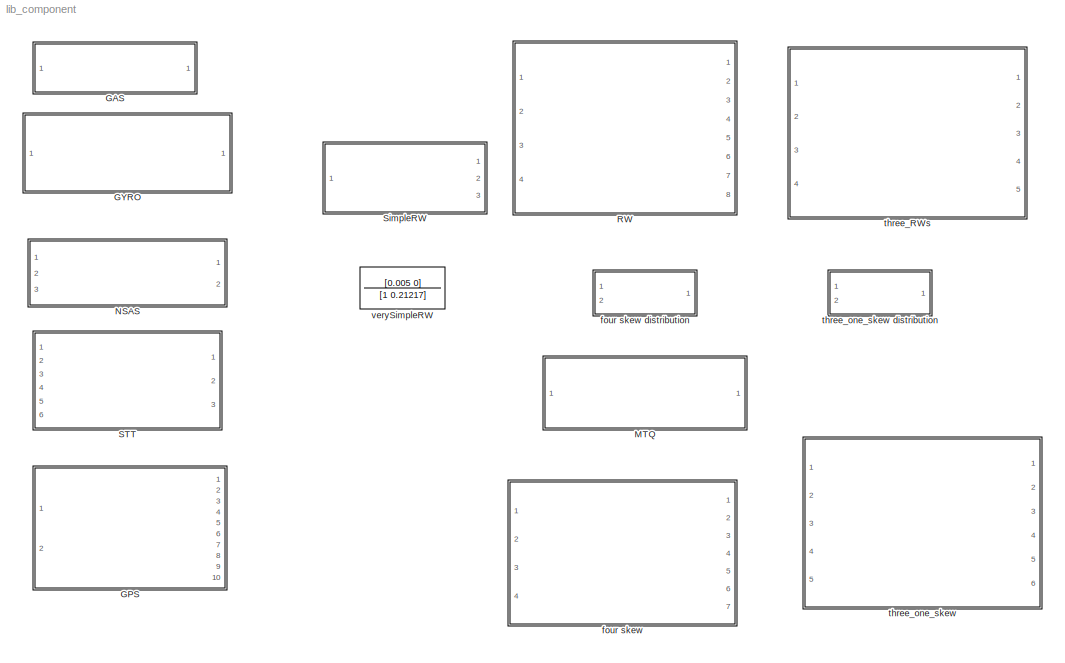
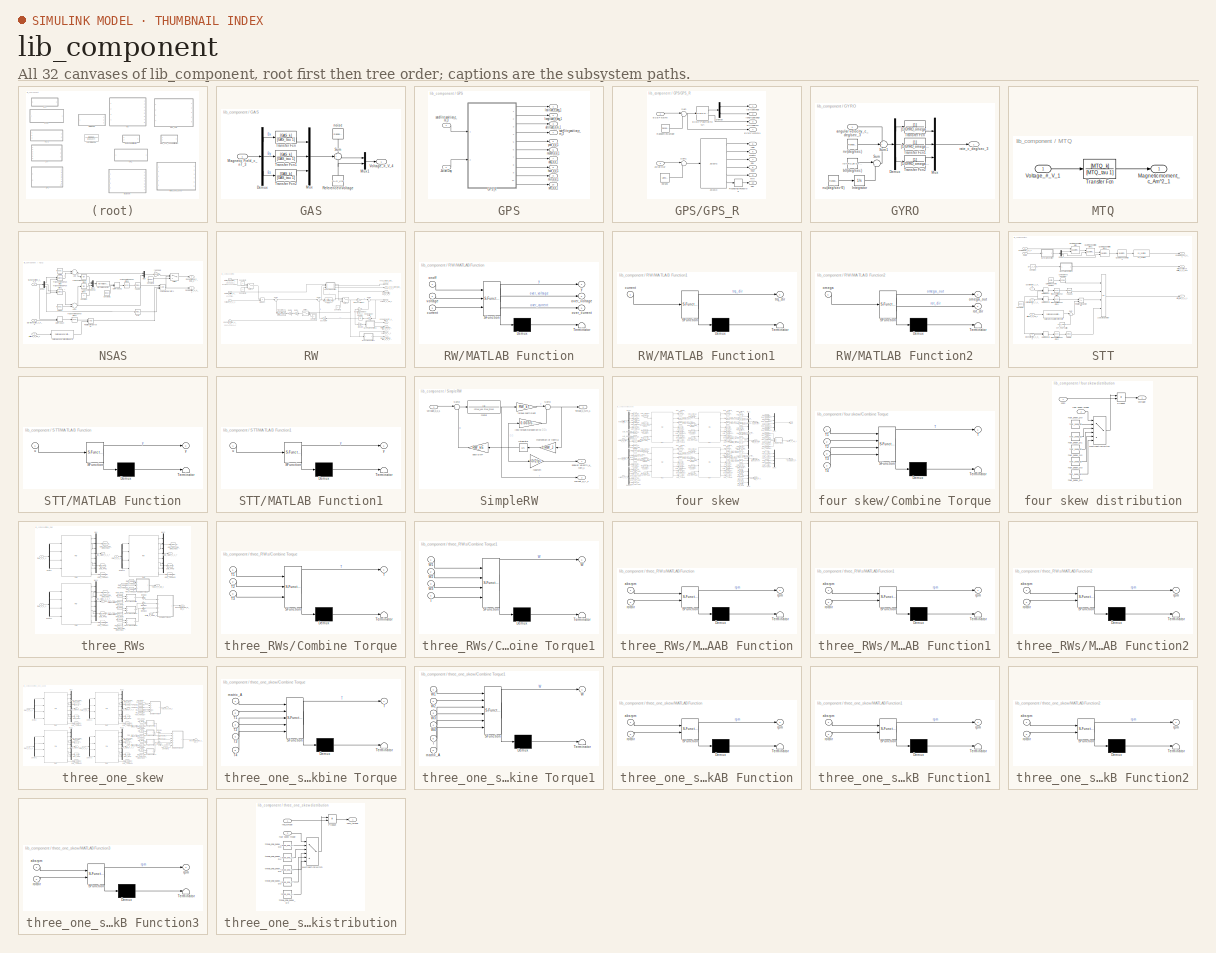
[diagram: thumbnail index - all 32 canvases of the model, root first then tree order]
MODEL lib_component
KIND library
BLOCK [SubSystem] GAS
  FunctionWithSeparateData = off
  MaskHideContents = off
  MinAlgLoopOccurrences = off
  Opaque = off
  Ports = [1, 1]
  PropExecContextOutsideSubsystem = off
  RTWSystemCode = Auto
  RequestExecContextInheritance = off
  SID = 1171
BLOCK [Demux] GAS/Demux
  DisplayOption = bar
  Outputs = 3
  Ports = [1, 3]
  SID = 1173
BLOCK [Inport] GAS/Magnetic Field_c_nT_3
  IconDisplay = Port number
  SID = 1172
BLOCK [Mux] GAS/Mux
  DisplayOption = bar
  Inputs = 3
  Ports = [3, 1]
  SID = 1174
BLOCK [Mux] GAS/Mux1
  DisplayOption = bar
  Inputs = 2
  Ports = [2, 1]
  SID = 1175
BLOCK [Constant] GAS/Reference\nVoltage
  SID = 1176
  Value = GAS_Vref
BLOCK [Sum] GAS/Sum
  IconShape = round
  InputSameDT = off
  Inputs = +++
  OutDataTypeStr = Inherit: Inherit via internal rule
  Ports = [3, 1]
  SID = 1177
  SaturateOnIntegerOverflow = off
BLOCK [TransferFcn] GAS/Transfer Fcn
  Denominator = [GAS_tau 1]
  Numerator = [GAS_k]
  SID = 1178
BLOCK [TransferFcn] GAS/Transfer Fcn1
  Denominator = [GAS_tau 1]
  Numerator = [GAS_k]
  SID = 1179
BLOCK [TransferFcn] GAS/Transfer Fcn2
  Denominator = [GAS_tau 1]
  Numerator = [GAS_k]
  SID = 1180
BLOCK [Outport] GAS/Voltage_#_V_4
  IconDisplay = Port number
  SID = 1182
BLOCK [RandomNumber] GAS/noise
  Mean = [0 0 0]
  SID = 1181
  SampleTime = noise_sampling_rate
  Seed = GAS_seed1
  Variance = [GAS_Vnoise*GAS_Vnoise GAS_Vnoise*GAS_Vnoise GAS_Vnoise*GAS_Vnoise]
BLOCK [SubSystem] GPS
  FunctionWithSeparateData = off
  MaskHideContents = off
  MinAlgLoopOccurrences = off
  Opaque = off
  Ports = [2, 10]
  PropExecContextOutsideSubsystem = off
  RTWSystemCode = Auto
  RequestExecContextInheritance = off
  SID = 676
BLOCK [SubSystem] GPS/GPS_R
  FunctionWithSeparateData = off
  MaskHideContents = off
  MinAlgLoopOccurrences = off
  Opaque = off
  Ports = [2, 10]
  PropExecContextOutsideSubsystem = off
  RTWSystemCode = Auto
  RequestExecContextInheritance = off
  SID = 682
BLOCK [Demux] GPS/GPS_R/Demux
  DisplayOption = bar
  Outputs = 2
  Ports = [1, 2]
  SID = 685
BLOCK [Reference] GPS/GPS_R/ECEF Position to LLA  REF=aerolibtransform2/ECEF Position to LLA
  F = 1/298.257223563
  FunctionWithSeparateData = off
  GeneratePreprocessorConditionals = off
  Ports = [1, 2]
  R = 6378137
  RTWMemSecDataConstants = Inherit from model
  RTWMemSecDataInternal = Inherit from model
  RTWMemSecDataParameters = Inherit from model
  RTWMemSecFuncExecute = Inherit from model
  RTWMemSecFuncInitTerm = Inherit from model
  SID = 686
  ShowPortLabels = FromPortIcon
  SourceBlock = aerolibtransform2/ECEF Position to LLA
  SourceType = ECEF to LLA
  SystemSampleTime = -1
  ptype = Earth (WGS84)
  units = Metric (MKS)
BLOCK [Inport] GPS/GPS_R/ECEF xyz[m]
  IconDisplay = Port number
  SID = 683
BLOCK [Outport] GPS/GPS_R/ECEF xyz[m]1
  IconDisplay = Port number
  Port = 4
  SID = 695
BLOCK [Reference] GPS/GPS_R/JD2GC  REF=lib_util/JD2GC  (lib defined in mdl_263c60253fa7)
  FunctionWithSeparateData = off
  GeneratePreprocessorConditionals = off
  Ports = [1, 6]
  RTWMemSecDataConstants = Inherit from model
  RTWMemSecDataInternal = Inherit from model
  RTWMemSecDataParameters = Inherit from model
  RTWMemSecFuncExecute = Inherit from model
  RTWMemSecFuncInitTerm = Inherit from model
  SID = 808
  ShowPortLabels = FromPortIcon
  SourceBlock = lib_util/JD2GC
  SourceType = SubSystem
  SystemSampleTime = -1
BLOCK [Inport] GPS/GPS_R/Julian Day
  IconDisplay = Port number
  Port = 2
  SID = 684
BLOCK [RandomNumber] GPS/GPS_R/Random\nNumber
  Mean = [0 0 0]
  SID = 687
  SampleTime = noise_sampling_rate
  Seed = GPS_position_seed
  Variance = [GPS_position_noise*GPS_position_noise GPS_position_noise*GPS_position_noise GPS_position_noise*GPS_position_noise]
BLOCK [Rounding] GPS/GPS_R/Rounding\nFunction
  SID = 809
BLOCK [Sum] GPS/GPS_R/Sum
  IconShape = round
  InputSameDT = off
  Inputs = |++
  OutDataTypeStr = Inherit: Inherit via internal rule
  Ports = [2, 1]
  SID = 688
  SaturateOnIntegerOverflow = off
BLOCK [Sum] GPS/GPS_R/Sum1
  IconShape = round
  InputSameDT = off
  Inputs = |++
  OutDataTypeStr = Inherit: Inherit via internal rule
  Ports = [2, 1]
  SID = 689
  SaturateOnIntegerOverflow = off
BLOCK [Outport] GPS/GPS_R/altitude[m]
  IconDisplay = Port number
  Port = 3
  SID = 694
BLOCK [Outport] GPS/GPS_R/day
  IconDisplay = Port number
  Port = 7
  SID = 698
BLOCK [Outport] GPS/GPS_R/hour
  IconDisplay = Port number
  Port = 8
  SID = 699
BLOCK [Outport] GPS/GPS_R/latitude[deg]
  IconDisplay = Port number
  SID = 692
BLOCK [Outport] GPS/GPS_R/longitude[deg]
  IconDisplay = Port number
  Port = 2
  SID = 693
BLOCK [Outport] GPS/GPS_R/min
  IconDisplay = Port number
  Port = 9
  SID = 700
BLOCK [Outport] GPS/GPS_R/month
  IconDisplay = Port number
  Port = 6
  SID = 697
BLOCK [UniformRandomNumber] GPS/GPS_R/noise3
  Maximum = GPS_time_noise
  Minimum = 0
  SID = 690
  SampleTime = noise_sampling_rate
  Seed = GPS_time_seed
BLOCK [Outport] GPS/GPS_R/sec
  IconDisplay = Port number
  Port = 10
  SID = 701
BLOCK [Outport] GPS/GPS_R/year
  IconDisplay = Port number
  Port = 5
  SID = 696
BLOCK [Inport] GPS/Julian Day
  IconDisplay = Port number
  Port = 2
  SID = 680
BLOCK [Outport] GPS/altitude_#_m_1
  IconDisplay = Port number
  Port = 3
  SID = 750
BLOCK [Outport] GPS/day_#_#_1
  IconDisplay = Port number
  Port = 7
  SID = 754
BLOCK [Outport] GPS/hour_#_#_1
  IconDisplay = Port number
  Port = 8
  SID = 755
BLOCK [Outport] GPS/latitude_e_deg_1
  IconDisplay = Port number
  SID = 748
BLOCK [Outport] GPS/longitude_e_deg_1
  IconDisplay = Port number
  Port = 2
  SID = 749
BLOCK [Outport] GPS/min_#_#_1
  IconDisplay = Port number
  Port = 9
  SID = 756
BLOCK [Outport] GPS/month_#_#_1
  IconDisplay = Port number
  Port = 6
  SID = 753
BLOCK [Inport] GPS/satellite position_e_m_3
  IconDisplay = Port number
  SID = 679
BLOCK [Outport] GPS/satellite_position_e_m_3'
  IconDisplay = Port number
  Port = 4
  SID = 751
BLOCK [Outport] GPS/sec_#_#_1
  IconDisplay = Port number
  Port = 10
  SID = 757
BLOCK [Outport] GPS/year_#_#_1
  IconDisplay = Port number
  Port = 5
  SID = 752
BLOCK [SubSystem] GYRO
  FunctionWithSeparateData = off
  MaskHideContents = off
  MinAlgLoopOccurrences = off
  Opaque = off
  Ports = [1, 1]
  PropExecContextOutsideSubsystem = off
  RTWSystemCode = Auto
  RequestExecContextInheritance = off
  SID = 1183
BLOCK [Demux] GYRO/Demux
  DisplayOption = bar
  Outputs = 3
  Ports = [1, 3]
  SID = 1185
BLOCK [Integrator] GYRO/Integrator
  Ports = [1, 1]
  SID = 1187
BLOCK [Mux] GYRO/Mux
  DisplayOption = bar
  Inputs = 3
  Ports = [3, 1]
  SID = 1188
BLOCK [Sum] GYRO/Sum
  IconShape = round
  InputSameDT = off
  Inputs = |++
  OutDataTypeStr = Inherit: Inherit via internal rule
  Ports = [2, 1]
  SID = 1189
  SaturateOnIntegerOverflow = off
BLOCK [Sum] GYRO/Sum1
  IconShape = round
  InputSameDT = off
  Inputs = +++
  OutDataTypeStr = Inherit: Inherit via internal rule
  Ports = [3, 1]
  SID = 1190
  SaturateOnIntegerOverflow = off
BLOCK [TransferFcn] GYRO/Transfer Fcn
  Denominator = [1/GYRO_omega/GYRO_omega 2*GYRO_zeta/GYRO_omega 1]
  SID = 1191
BLOCK [TransferFcn] GYRO/Transfer Fcn1
  Denominator = [1/GYRO_omega/GYRO_omega 2*GYRO_zeta/GYRO_omega 1]
  SID = 1192
BLOCK [TransferFcn] GYRO/Transfer Fcn2
  Denominator = [1/GYRO_omega/GYRO_omega 2*GYRO_zeta/GYRO_omega 1]
  SID = 1193
BLOCK [Inport] GYRO/angular velocity_c_deg//sec_3
  IconDisplay = Port number
  SID = 1184
BLOCK [Constant] GYRO/b0(deg//sec)
  SID = 1194
  Value = [GYRO_bx GYRO_by GYRO_bz]
BLOCK [RandomNumber] GYRO/nu(deg//sec^2)
  Mean = [0 0 0]
  SID = 1195
  SampleTime = noise_sampling_rate
  Seed = GYRO_seed2
  Variance = [GYRO_nu*GYRO_nu GYRO_nu*GYRO_nu GYRO_nu*GYRO_nu]
BLOCK [RandomNumber] GYRO/nv(deg//sec)
  Mean = [0 0 0]
  SID = 1196
  SampleTime = noise_sampling_rate
  Seed = GYRO_seed1
  Variance = [GYRO_nv*GYRO_nv GYRO_nv*GYRO_nv GYRO_nv*GYRO_nv]
BLOCK [Outport] GYRO/rate_c_deg//sec_3
  IconDisplay = Port number
  SID = 1197
BLOCK [SubSystem] MTQ
  FunctionWithSeparateData = off
  MaskHideContents = off
  MinAlgLoopOccurrences = off
  Opaque = off
  Ports = [1, 1]
  PropExecContextOutsideSubsystem = off
  RTWSystemCode = Auto
  RequestExecContextInheritance = off
  SID = 1198
BLOCK [Outport] MTQ/Magnetic moment_c_Am^2_1
  IconDisplay = Port number
  SID = 1201
BLOCK [TransferFcn] MTQ/Transfer Fcn
  Denominator = [MTQ_tau 1]
  Numerator = [MTQ_k]
  SID = 1200
BLOCK [Inport] MTQ/Voltage_#_V_1
  IconDisplay = Port number
  SID = 1199
BLOCK [SubSystem] NSAS
  FunctionWithSeparateData = off
  MaskHideContents = off
  MinAlgLoopOccurrences = off
  Opaque = off
  Ports = [3, 2]
  PropExecContextOutsideSubsystem = off
  RTWSystemCode = Auto
  RequestExecContextInheritance = off
  SID = 2869
BLOCK [Reference] NSAS/<55deg  REF=simulink/Logic and Bit\nOperations/Compare\nTo Constant
  FunctionWithSeparateData = off
  GeneratePreprocessorConditionals = off
  LogicOutDataTypeMode = uint8
  Ports = [1, 1]
  RTWMemSecDataConstants = Inherit from model
  RTWMemSecDataInternal = Inherit from model
  RTWMemSecDataParameters = Inherit from model
  RTWMemSecFuncExecute = Inherit from model
  RTWMemSecFuncInitTerm = Inherit from model
  SID = 2875
  ShowPortLabels = FromPortIcon
  SourceBlock = simulink/Logic and Bit\nOperations/Compare\nTo Constant
  SourceType = Compare To Constant
  SystemSampleTime = -1
  ZeroCross = on
  const = NSAS_ang_limit
  relop = <
BLOCK [Sum] NSAS/Add
  InputSameDT = off
  OutDataTypeStr = Inherit: Inherit via internal rule
  Ports = [2, 1]
  SID = 2879
  SaturateOnIntegerOverflow = off
BLOCK [Sum] NSAS/Add1
  InputSameDT = off
  OutDataTypeStr = Inherit: Inherit via internal rule
  Ports = [2, 1]
  SID = 2880
  SaturateOnIntegerOverflow = off
BLOCK [Constant] NSAS/Constant
  SID = 5301
BLOCK [Constant] NSAS/Constant1
  SID = 5303
  Value = [0; 0; 1]
BLOCK [Constant] NSAS/Constant2
  SID = 2882
  Value = [-55 -55]
BLOCK [Demux] NSAS/Demux
  DisplayOption = bar
  Outputs = 3
  Ports = [1, 3]
  SID = 2883
BLOCK [DotProduct] NSAS/Dot Product
  OutDataTypeStr = Inherit: Inherit via internal rule
  SID = 2884
BLOCK [DotProduct] NSAS/Dot Product1
  OutDataTypeStr = Inherit: Inherit via internal rule
  SID = 5304
BLOCK [Inport] NSAS/Earth direction_c_#_3
  IconDisplay = Port number
  Port = 2
  SID = 2873
BLOCK [Logic] NSAS/Logical\nOperator1
  AllPortsSameDT = off
  Inputs = 3
  OutDataTypeStr = boolean
  Ports = [3, 1]
  SID = 2886
BLOCK [Mux] NSAS/Mux
  DisplayOption = bar
  Inputs = 2
  Ports = [2, 1]
  SID = 2887
BLOCK [Mux] NSAS/Mux1
  DisplayOption = bar
  Inputs = 3
  Ports = [3, 1]
  SID = 5300
BLOCK [Reference] NSAS/Normalize Vector  REF=vrlib/Utilities/Normalize Vector
  FunctionWithSeparateData = off
  GeneratePreprocessorConditionals = off
  Ports = [1, 1]
  RTWMemSecDataConstants = Inherit from model
  RTWMemSecDataInternal = Inherit from model
  RTWMemSecDataParameters = Inherit from model
  RTWMemSecFuncExecute = Inherit from model
  RTWMemSecFuncInitTerm = Inherit from model
  SID = 5302
  ShowPortLabels = FromPortIcon
  SourceBlock = vrlib/Utilities/Normalize Vector
  SourceType = Normalize Vector
  SystemSampleTime = -1
  maxzero = 0
BLOCK [RelationalOperator] NSAS/Relational\nOperator
  InputSameDT = off
  OutDataTypeStr = boolean
  Ports = [2, 1]
  SID = 2889
BLOCK [Outport] NSAS/Sun angle out_c_deg_2
  IconDisplay = Port number
  Port = 2
  SID = 2900
BLOCK [Inport] NSAS/Sun direction in_c_#_3
  IconDisplay = Port number
  SID = 2872
BLOCK [Outport] NSAS/Sun in//out flag_#_#_1
  IconDisplay = Port number
  SID = 2899
BLOCK [Switch] NSAS/Switch
  Criteria = u2 > Threshold
  InputSameDT = off
  SID = 2890
  SaturateOnIntegerOverflow = off
BLOCK [Trigonometry] NSAS/Trigonometric\nFunction
  Operator = atan2
  Ports = [2, 1]
  SID = 2891
BLOCK [Trigonometry] NSAS/Trigonometric\nFunction1
  Operator = atan2
  Ports = [2, 1]
  SID = 2892
BLOCK [Trigonometry] NSAS/Trigonometric\nFunction2
  Operator = tan
  Ports = [1, 1]
  SID = 5298
BLOCK [Trigonometry] NSAS/Trigonometric\nFunction3
  Operator = tan
  Ports = [1, 1]
  SID = 5299
BLOCK [Trigonometry] NSAS/Trigonometric\nFunction4
  Operator = acos
  Ports = [1, 1]
  SID = 2895
BLOCK [Trigonometry] NSAS/Trigonometric\nFunction5
  Operator = acos
  Ports = [1, 1]
  SID = 5305
BLOCK [Inport] NSAS/altitude_#_km_1
  IconDisplay = Port number
  Port = 3
  SID = 2874
BLOCK [Reference] NSAS/half angle separation of the earth  REF=lib_env/half angle separation of the earth  (lib defined in mdl_9d5cf06e00da)
  FunctionWithSeparateData = off
  GeneratePreprocessorConditionals = off
  Ports = [1, 1]
  RTWMemSecDataConstants = Inherit from model
  RTWMemSecDataInternal = Inherit from model
  RTWMemSecDataParameters = Inherit from model
  RTWMemSecFuncExecute = Inherit from model
  RTWMemSecFuncInitTerm = Inherit from model
  SID = 2896
  ShowPortLabels = FromPortIcon
  SourceBlock = lib_env/half angle separation of the earth
  SourceType = SubSystem
  SystemSampleTime = -1
BLOCK [RandomNumber] NSAS/noise
  SID = 2897
  SampleTime = noise_sampling_rate
  Seed = NSAS_seed1
  Variance = NSAS_x_noise*NSAS_x_noise
BLOCK [RandomNumber] NSAS/noise1
  SID = 2898
  SampleTime = noise_sampling_rate
  Seed = NSAS_seed2
  Variance = NSAS_y_noise*NSAS_y_noise
BLOCK [Gain] NSAS/rad2deg
  Gain = 180.0/pi
  OutDataTypeStr = Inherit: Inherit via internal rule
  ParamDataTypeStr = Inherit: Inherit via internal rule
  SID = 3566
  SaturateOnIntegerOverflow = off
BLOCK [Reference] NSAS/z>0  REF=simulink/Logic and Bit\nOperations/Compare\nTo Constant
  FunctionWithSeparateData = off
  GeneratePreprocessorConditionals = off
  LogicOutDataTypeMode = uint8
  Ports = [1, 1]
  RTWMemSecDataConstants = Inherit from model
  RTWMemSecDataInternal = Inherit from model
  RTWMemSecDataParameters = Inherit from model
  RTWMemSecFuncExecute = Inherit from model
  RTWMemSecFuncInitTerm = Inherit from model
  SID = 6218
  ShowPortLabels = FromPortIcon
  SourceBlock = simulink/Logic and Bit\nOperations/Compare\nTo Constant
  SourceType = Compare To Constant
  SystemSampleTime = -1
  ZeroCross = on
  const = 0
  relop = >
BLOCK [SubSystem] RW
  FunctionWithSeparateData = off
  MaskHideContents = off
  MinAlgLoopOccurrences = off
  Opaque = off
  Ports = [4, 8]
  PropExecContextOutsideSubsystem = off
  RTWSystemCode = Auto
  RequestExecContextInheritance = off
  SID = 54
BLOCK [Constant] RW/Constant
  SID = 407
  Value = 0
BLOCK [Constant] RW/Constant1
  SID = 487
  Value = 0
BLOCK [Constant] RW/Constant2
  SID = 491
  Value = -1
BLOCK [Constant] RW/Constant3
  SID = 492
BLOCK [Gain] RW/Gain1
  Gain = RW_Rsc
  OutDataTypeStr = Inherit: Inherit via internal rule
  ParamDataTypeStr = Inherit: Inherit via internal rule
  SID = 58
  SaturateOnIntegerOverflow = off
BLOCK [Gain] RW/Gamp
  Gain = RW_Gamp
  OutDataTypeStr = Inherit: Inherit via internal rule
  ParamDataTypeStr = Inherit: Inherit via internal rule
  SID = 98
  SaturateOnIntegerOverflow = off
BLOCK [Integrator] RW/Integrator
  Ports = [1, 1]
  SID = 62
BLOCK [SubSystem] RW/MATLAB Function
  ErrorFcn = Stateflow.Translate.translate
  FunctionWithSeparateData = off
  MaskDescription = Embedded MATLAB block
  MaskDisplay = bgColor = Simulink.Root.ColorString2Rgb(get_param(gcbh, 'BackgroundColor')); image(imread('private/eml_membrane_16.png','png','BackgroundColor',bgColor(1:3)),'center'); disp([10 10 'fcn']);  <repeated x12 — deduplicated; at blocks: MATLAB Function, MATLAB Function1, MATLAB Function2, MATLAB Function3>
  MaskHideContents = off
  MaskIconFrame = on
  MaskIconOpaque = off
  MaskIconRotate = none
  MaskIconUnits = normalized
  MaskPortRotate = default
  MaskSelfModifiable = on
  MaskType = Stateflow
  MinAlgLoopOccurrences = off
  Opaque = off
  PermitHierarchicalResolution = ExplicitOnly
  Ports = [3, 3]
  PropExecContextOutsideSubsystem = off
  RTWSystemCode = Auto
  RequestExecContextInheritance = off
  SID = 4040
  TreatAsAtomicUnit = on
BLOCK [Demux] RW/MATLAB Function/ Demux 
  Outputs = 1
  Ports = [1, 1]
  SID = 4040::15
BLOCK [S-Function] RW/MATLAB Function/ SFunction 
  EnableBusSupport = off
  FunctionName = sf_sfun
  PortCounts = [3 4]
  Ports = [3, 4]
  SID = 4040::14
  Tag = Stateflow S-Function lib_component 6
BLOCK [Terminator] RW/MATLAB Function/ Terminator 
  SID = 4040::17
BLOCK [Inport] RW/MATLAB Function/current
  IconDisplay = Port number
  Port = 3
  SID = 4040::19
BLOCK [Inport] RW/MATLAB Function/onoff
  IconDisplay = Port number
  SID = 4040::1
BLOCK [Outport] RW/MATLAB Function/over_current
  IconDisplay = Port number
  Port = 3
  SID = 4040::21
BLOCK [Outport] RW/MATLAB Function/over_voltage
  IconDisplay = Port number
  Port = 2
  SID = 4040::20
BLOCK [Inport] RW/MATLAB Function/voltage
  IconDisplay = Port number
  Port = 2
  SID = 4040::18
BLOCK [Outport] RW/MATLAB Function/y
  IconDisplay = Port number
  SID = 4040::5
BLOCK [SubSystem] RW/MATLAB Function1
  ErrorFcn = Stateflow.Translate.translate
  FunctionWithSeparateData = off
  MaskDescription = Embedded MATLAB block
  MaskHideContents = off
  MaskIconFrame = on
  MaskIconOpaque = off
  MaskIconRotate = none
  MaskIconUnits = normalized
  MaskPortRotate = default
  MaskSelfModifiable = on
  MaskType = Stateflow
  MinAlgLoopOccurrences = off
  Opaque = off
  PermitHierarchicalResolution = ExplicitOnly
  Ports = [1, 1]
  PropExecContextOutsideSubsystem = off
  RTWSystemCode = Auto
  RequestExecContextInheritance = off
  SID = 4548
  TreatAsAtomicUnit = on
BLOCK [Demux] RW/MATLAB Function1/ Demux 
  Outputs = 1
  Ports = [1, 1]
  SID = 4548::21
BLOCK [S-Function] RW/MATLAB Function1/ SFunction 
  EnableBusSupport = off
  FunctionName = sf_sfun
  PortCounts = [1 2]
  Ports = [1, 2]
  SID = 4548::20
  Tag = Stateflow S-Function lib_component 7
BLOCK [Terminator] RW/MATLAB Function1/ Terminator 
  SID = 4548::23
BLOCK [Inport] RW/MATLAB Function1/current
  IconDisplay = Port number
  SID = 4548::19
BLOCK [Outport] RW/MATLAB Function1/trq_dir
  IconDisplay = Port number
  SID = 4548::24
BLOCK [SubSystem] RW/MATLAB Function2
  ErrorFcn = Stateflow.Translate.translate
  FunctionWithSeparateData = off
  MaskDescription = Embedded MATLAB block
  MaskHideContents = off
  MaskIconFrame = on
  MaskIconOpaque = off
  MaskIconRotate = none
  MaskIconUnits = normalized
  MaskPortRotate = default
  MaskSelfModifiable = on
  MaskType = Stateflow
  MinAlgLoopOccurrences = off
  Opaque = off
  PermitHierarchicalResolution = ExplicitOnly
  Ports = [1, 2]
  PropExecContextOutsideSubsystem = off
  RTWSystemCode = Auto
  RequestExecContextInheritance = off
  SID = 4895
  TreatAsAtomicUnit = on
BLOCK [Demux] RW/MATLAB Function2/ Demux 
  Outputs = 1
  Ports = [1, 1]
  SID = 4895::26
BLOCK [S-Function] RW/MATLAB Function2/ SFunction 
  EnableBusSupport = off
  FunctionName = sf_sfun
  PortCounts = [1 3]
  Ports = [1, 3]
  SID = 4895::25
  Tag = Stateflow S-Function lib_component 8
BLOCK [Terminator] RW/MATLAB Function2/ Terminator 
  SID = 4895::28
BLOCK [Inport] RW/MATLAB Function2/omega
  IconDisplay = Port number
  SID = 4895::19
BLOCK [Outport] RW/MATLAB Function2/omega_out
  IconDisplay = Port number
  SID = 4895::5
BLOCK [Outport] RW/MATLAB Function2/rot_dir
  IconDisplay = Port number
  Port = 2
  SID = 4895::24
BLOCK [Product] RW/Product
  InputSameDT = off
  OutDataTypeStr = Inherit: Inherit via internal rule
  Ports = [2, 1]
  SID = 4038
  SaturateOnIntegerOverflow = off
BLOCK [Sum] RW/Sum1
  IconShape = round
  InputSameDT = off
  Inputs = |+-
  OutDataTypeStr = Inherit: Inherit via internal rule
  Ports = [2, 1]
  SID = 477
  SaturateOnIntegerOverflow = off
BLOCK [Sum] RW/Sum2
  IconShape = round
  InputSameDT = off
  Inputs = |+-
  OutDataTypeStr = Inherit: Inherit via internal rule
  Ports = [2, 1]
  SID = 482
  SaturateOnIntegerOverflow = off
BLOCK [Sum] RW/Sum3
  IconShape = round
  InputSameDT = off
  Inputs = |+-
  OutDataTypeStr = Inherit: Inherit via internal rule
  Ports = [2, 1]
  SID = 485
  SaturateOnIntegerOverflow = off
BLOCK [Switch] RW/Switch
  InputSameDT = off
  SID = 408
  SaturateOnIntegerOverflow = off
  Threshold = 1
BLOCK [Switch] RW/Switch1
  InputSameDT = off
  SID = 486
  SaturateOnIntegerOverflow = off
  Threshold = 1
BLOCK [Switch] RW/Switch2
  InputSameDT = off
  SID = 489
  SaturateOnIntegerOverflow = off
  Threshold = 1
BLOCK [Outport] RW/Torque_c_Nm_1
  IconDisplay = Port number
  Port = 8
  SID = 68
BLOCK [TransferFcn] RW/Transfer Fcn1
  Denominator = [RW_T2 1]
  Numerator = [RW_T1*RW_kL RW_kL]
  SID = 67
BLOCK [Outport] RW/angular velocity_#_rpm_1
  IconDisplay = Port number
  Port = 6
  SID = 200
BLOCK [Gain] RW/back EMF
  Gain = RW_kE
  OutDataTypeStr = Inherit: Inherit via internal rule
  ParamDataTypeStr = Inherit: Inherit via internal rule
  SID = 61
  SaturateOnIntegerOverflow = off
BLOCK [Outport] RW/current_#_A_1
  IconDisplay = Port number
  Port = 7
  SID = 204
BLOCK [Gain] RW/loss torque\n(propotion to ƒÖ)
  Gain = 0.003/5000*60/2/pi
  OutDataTypeStr = Inherit: Inherit via internal rule
  ParamDataTypeStr = Inherit: Inherit via internal rule
  SID = 205
  SaturateOnIntegerOverflow = off
BLOCK [Gain] RW/momentum of inertia
  Gain = 1/RW_J
  OutDataTypeStr = Inherit: Inherit via internal rule
  ParamDataTypeStr = Inherit: Inherit via internal rule
  SID = 60
  SaturateOnIntegerOverflow = off
BLOCK [TransferFcn] RW/motor
  Denominator = [RW_LM RW_RM]
  SID = 66
BLOCK [Outport] RW/motor on//off flag out_#_#_1
  IconDisplay = Port number
  SID = 206
BLOCK [Inport] RW/motor on//off flag_#_#_1
  IconDisplay = Port number
  SID = 187
BLOCK [Inport] RW/open//close flag_#_#_1
  IconDisplay = Port number
  Port = 3
  SID = 406
BLOCK [Outport] RW/over_current_flag_#_#_1
  IconDisplay = Port number
  Port = 5
  SID = 4904
BLOCK [Outport] RW/over_voltage_flag_#_#_1
  IconDisplay = Port number
  Port = 4
  SID = 4903
BLOCK [Gain] RW/rad2rpm
  Gain = 60/2/pi
  OutDataTypeStr = Inherit: Inherit via internal rule
  ParamDataTypeStr = Inherit: Inherit via internal rule
  SID = 203
  SaturateOnIntegerOverflow = off
BLOCK [Inport] RW/rotation mode flag_#_#_1
  IconDisplay = Port number
  Port = 2
  SID = 106
BLOCK [Outport] RW/rotation_direction_flag_#_#_1
  IconDisplay = Port number
  Port = 3
  SID = 4896
BLOCK [Gain] RW/torque coefficient
  Gain = RW_kT
  OutDataTypeStr = Inherit: Inherit via internal rule
  ParamDataTypeStr = Inherit: Inherit via internal rule
  SID = 59
  SaturateOnIntegerOverflow = off
BLOCK [Outport] RW/torque_direction_flag_#_#_1
  IconDisplay = Port number
  Port = 2
  SID = 4549
BLOCK [Inport] RW/voltage_#_#_1
  IconDisplay = Port number
  Port = 4
  SID = 55
BLOCK [SubSystem] STT
  FunctionWithSeparateData = off
  MaskHideContents = off
  MinAlgLoopOccurrences = off
  Opaque = off
  Ports = [6, 3]
  PropExecContextOutsideSubsystem = off
  RTWSystemCode = Auto
  RequestExecContextInheritance = off
  SID = 2901
BLOCK [Reference] STT/<35deg  REF=simulink/Logic and Bit\nOperations/Compare\nTo Constant
  FunctionWithSeparateData = off
  GeneratePreprocessorConditionals = off
  LogicOutDataTypeMode = uint8
  Ports = [1, 1]
  RTWMemSecDataConstants = Inherit from model
  RTWMemSecDataInternal = Inherit from model
  RTWMemSecDataParameters = Inherit from model
  RTWMemSecFuncExecute = Inherit from model
  RTWMemSecFuncInitTerm = Inherit from model
  SID = 2910
  ShowPortLabels = FromPortIcon
  SourceBlock = simulink/Logic and Bit\nOperations/Compare\nTo Constant
  SourceType = Compare To Constant
  SystemSampleTime = -1
  ZeroCross = on
  const = STT_sun_ang_limit
  relop = <
BLOCK [Reference] STT/<5deg  REF=simulink/Logic and Bit\nOperations/Compare\nTo Constant
  FunctionWithSeparateData = off
  GeneratePreprocessorConditionals = off
  LogicOutDataTypeMode = uint8
  Ports = [1, 1]
  RTWMemSecDataConstants = Inherit from model
  RTWMemSecDataInternal = Inherit from model
  RTWMemSecDataParameters = Inherit from model
  RTWMemSecFuncExecute = Inherit from model
  RTWMemSecFuncInitTerm = Inherit from model
  SID = 2911
  ShowPortLabels = FromPortIcon
  SourceBlock = simulink/Logic and Bit\nOperations/Compare\nTo Constant
  SourceType = Compare To Constant
  SystemSampleTime = -1
  ZeroCross = on
  const = STT_moon_ang_limit
  relop = <
BLOCK [Reference] STT/Compare\nTo Constant  REF=simulink/Logic and Bit\nOperations/Compare\nTo Constant
  FunctionWithSeparateData = off
  GeneratePreprocessorConditionals = off
  LogicOutDataTypeMode = uint8
  Ports = [1, 1]
  RTWMemSecDataConstants = Inherit from model
  RTWMemSecDataInternal = Inherit from model
  RTWMemSecDataParameters = Inherit from model
  RTWMemSecFuncExecute = Inherit from model
  RTWMemSecFuncInitTerm = Inherit from model
  SID = 2912
  ShowPortLabels = FromPortIcon
  SourceBlock = simulink/Logic and Bit\nOperations/Compare\nTo Constant
  SourceType = Compare To Constant
  SystemSampleTime = -1
  ZeroCross = on
  const = STT_AD_prob
  relop = >=
BLOCK [Constant] STT/Constant
  SID = 2913
  SampleTime = 0
  Value = [STT_x_noise STT_y_noise STT_z_noise]
BLOCK [Constant] STT/Constant2
  SID = 2914
  Value = [1 0 0]
BLOCK [Demux] STT/Demux
  DisplayOption = bar
  Outputs = 3
  Ports = [1, 3]
  SID = 2915
BLOCK [DotProduct] STT/Dot Product
  OutDataTypeStr = Inherit: Inherit via internal rule
  SID = 2916
BLOCK [DotProduct] STT/Dot Product1
  OutDataTypeStr = Inherit: Inherit via internal rule
  SID = 2917
BLOCK [DotProduct] STT/Dot Product2
  OutDataTypeStr = Inherit: Inherit via internal rule
  SID = 2918
BLOCK [Inport] STT/Earth direction_c_#_3
  IconDisplay = Port number
  Port = 3
  SID = 2906
BLOCK [Logic] STT/Logical\nOperator
  AllPortsSameDT = off
  Inputs = 4
  Operator = OR
  OutDataTypeStr = boolean
  Ports = [4, 1]
  SID = 2919
BLOCK [SubSystem] STT/MATLAB Function
  ErrorFcn = Stateflow.Translate.translate
  FunctionWithSeparateData = off
  MaskDescription = Embedded MATLAB block
  MaskHideContents = off
  MaskIconFrame = on
  MaskIconOpaque = off
  MaskIconRotate = none
  MaskIconUnits = normalized
  MaskPortRotate = default
  MaskSelfModifiable = on
  MaskType = Stateflow
  MinAlgLoopOccurrences = off
  Opaque = off
  PermitHierarchicalResolution = ExplicitOnly
  Ports = [1, 1]
  PropExecContextOutsideSubsystem = off
  RTWSystemCode = Auto
  RequestExecContextInheritance = off
  SID = 2920
  TreatAsAtomicUnit = on
BLOCK [Demux] STT/MATLAB Function/ Demux 
  Outputs = 1
  Ports = [1, 1]
  SID = 2920::27
BLOCK [S-Function] STT/MATLAB Function/ SFunction 
  EnableBusSupport = off
  FunctionName = sf_sfun
  PortCounts = [1 2]
  Ports = [1, 2]
  SID = 2920::26
  Tag = Stateflow S-Function lib_component 4
BLOCK [Terminator] STT/MATLAB Function/ Terminator 
  SID = 2920::29
BLOCK [Inport] STT/MATLAB Function/u
  IconDisplay = Port number
  SID = 2920::1
BLOCK [Outport] STT/MATLAB Function/y
  IconDisplay = Port number
  SID = 2920::5
BLOCK [SubSystem] STT/MATLAB Function1
  ErrorFcn = Stateflow.Translate.translate
  FunctionWithSeparateData = off
  MaskDescription = Embedded MATLAB block
  MaskHideContents = off
  MaskIconFrame = on
  MaskIconOpaque = off
  MaskIconRotate = none
  MaskIconUnits = normalized
  MaskPortRotate = default
  MaskSelfModifiable = on
  MaskType = Stateflow
  MinAlgLoopOccurrences = off
  Opaque = off
  PermitHierarchicalResolution = ExplicitOnly
  Ports = [1, 1]
  PropExecContextOutsideSubsystem = off
  RTWSystemCode = Auto
  RequestExecContextInheritance = off
  SID = 2921
  TreatAsAtomicUnit = on
BLOCK [Demux] STT/MATLAB Function1/ Demux 
  Outputs = 1
  Ports = [1, 1]
  SID = 2921::31
BLOCK [S-Function] STT/MATLAB Function1/ SFunction 
  EnableBusSupport = off
  FunctionName = sf_sfun
  PortCounts = [1 2]
  Ports = [1, 2]
  SID = 2921::30
  Tag = Stateflow S-Function lib_component 5
BLOCK [Terminator] STT/MATLAB Function1/ Terminator 
  SID = 2921::33
BLOCK [Inport] STT/MATLAB Function1/u
  IconDisplay = Port number
  SID = 2921::1
BLOCK [Outport] STT/MATLAB Function1/y
  IconDisplay = Port number
  SID = 2921::5
BLOCK [Inport] STT/Moon direction_c_#_3
  IconDisplay = Port number
  Port = 4
  SID = 2907
BLOCK [Reference] STT/Quaternion\nMultiplication  REF=aerolibutil/Quaternion\nMultiplication
  FunctionWithSeparateData = off
  GeneratePreprocessorConditionals = off
  Ports = [2, 1]
  RTWMemSecDataConstants = Inherit from model
  RTWMemSecDataInternal = Inherit from model
  RTWMemSecDataParameters = Inherit from model
  RTWMemSecFuncExecute = Inherit from model
  RTWMemSecFuncInitTerm = Inherit from model
  SID = 2922
  ShowPortLabels = FromPortIcon
  SourceBlock = aerolibutil/Quaternion\nMultiplication
  SourceType = Quaternion Multiplication
  SystemSampleTime = -1
BLOCK [Reference] STT/Quaternion\nMultiplication1  REF=aerolibutil/Quaternion\nMultiplication
  FunctionWithSeparateData = off
  GeneratePreprocessorConditionals = off
  Ports = [2, 1]
  RTWMemSecDataConstants = Inherit from model
  RTWMemSecDataInternal = Inherit from model
  RTWMemSecDataParameters = Inherit from model
  RTWMemSecFuncExecute = Inherit from model
  RTWMemSecFuncInitTerm = Inherit from model
  SID = 2923
  ShowPortLabels = FromPortIcon
  SourceBlock = aerolibutil/Quaternion\nMultiplication
  SourceType = Quaternion Multiplication
  SystemSampleTime = -1
BLOCK [Reference] STT/Quaternion\nMultiplication2  REF=aerolibutil/Quaternion\nMultiplication
  FunctionWithSeparateData = off
  GeneratePreprocessorConditionals = off
  Ports = [2, 1]
  RTWMemSecDataConstants = Inherit from model
  RTWMemSecDataInternal = Inherit from model
  RTWMemSecDataParameters = Inherit from model
  RTWMemSecFuncExecute = Inherit from model
  RTWMemSecFuncInitTerm = Inherit from model
  SID = 2924
  ShowPortLabels = FromPortIcon
  SourceBlock = aerolibutil/Quaternion\nMultiplication
  SourceType = Quaternion Multiplication
  SystemSampleTime = -1
BLOCK [Reference] STT/Quaternion\nNormalize  REF=aerolibutil/Quaternion\nNormalize
  FunctionWithSeparateData = off
  GeneratePreprocessorConditionals = off
  Ports = [1, 1]
  RTWMemSecDataConstants = Inherit from model
  RTWMemSecDataInternal = Inherit from model
  RTWMemSecDataParameters = Inherit from model
  RTWMemSecFuncExecute = Inherit from model
  RTWMemSecFuncInitTerm = Inherit from model
  SID = 2925
  ShowPortLabels = FromPortIcon
  SourceBlock = aerolibutil/Quaternion\nNormalize
  SourceType = Quaternion Normalize
  SystemSampleTime = -1
BLOCK [RelationalOperator] STT/Relational\nOperator
  InputSameDT = off
  Operator = <=
  OutDataTypeStr = boolean
  Ports = [2, 1]
  SID = 2926
BLOCK [Constant] STT/STT_FOV * sqrt(2)
  SID = 2927
  Value = STT_FOV * sqrt(2)
BLOCK [Sum] STT/Sum
  IconShape = round
  InputSameDT = off
  Inputs = |++
  OutDataTypeStr = Inherit: Inherit via internal rule
  Ports = [2, 1]
  SID = 2928
  SaturateOnIntegerOverflow = off
BLOCK [Inport] STT/Sun direction_c_#_3
  IconDisplay = Port number
  Port = 2
  SID = 2905
BLOCK [Trigonometry] STT/Trigonometric\nFunction
  Operator = acos
  Ports = [1, 1]
  SID = 2929
BLOCK [Trigonometry] STT/Trigonometric\nFunction1
  Operator = acos
  Ports = [1, 1]
  SID = 2930
BLOCK [Trigonometry] STT/Trigonometric\nFunction2
  Operator = acos
  Ports = [1, 1]
  SID = 2931
BLOCK [UniformRandomNumber] STT/Uniform Random\nNumber
  Minimum = 0
  SID = 2932
  SampleTime = noise_sampling_rate
BLOCK [Inport] STT/altitude_#_km_1
  IconDisplay = Port number
  Port = 5
  SID = 2908
BLOCK [Outport] STT/error covariance matrix_#_#_3x3
  IconDisplay = Port number
  Port = 3
  SID = 2940
BLOCK [Outport] STT/error_flag_#_#_1
  IconDisplay = Port number
  Port = 2
  SID = 2939
BLOCK [Reference] STT/half angle separation of the earth  REF=lib_env/half angle separation of the earth  (lib defined in mdl_9d5cf06e00da)
  FunctionWithSeparateData = off
  GeneratePreprocessorConditionals = off
  Ports = [1, 1]
  RTWMemSecDataConstants = Inherit from model
  RTWMemSecDataInternal = Inherit from model
  RTWMemSecDataParameters = Inherit from model
  RTWMemSecFuncExecute = Inherit from model
  RTWMemSecFuncInitTerm = Inherit from model
  SID = 2936
  ShowPortLabels = FromPortIcon
  SourceBlock = lib_env/half angle separation of the earth
  SourceType = SubSystem
  SystemSampleTime = -1
BLOCK [Inport] STT/noise
  IconDisplay = Port number
  Port = 6
  SID = 2909
BLOCK [Reference] STT/q1_positive  REF=lib_util/q1_positive  (lib defined in mdl_263c60253fa7)
  FunctionWithSeparateData = off
  GeneratePreprocessorConditionals = off
  Ports = [1, 1]
  RTWMemSecDataConstants = Inherit from model
  RTWMemSecDataInternal = Inherit from model
  RTWMemSecDataParameters = Inherit from model
  RTWMemSecFuncExecute = Inherit from model
  RTWMemSecFuncInitTerm = Inherit from model
  SID = 2937
  ShowPortLabels = FromPortIcon
  SourceBlock = lib_util/q1_positive
  SourceType = SubSystem
  SystemSampleTime = -1
BLOCK [Inport] STT/quaternion in_i_#_4
  IconDisplay = Port number
  SID = 2904
BLOCK [Outport] STT/quaternion out_i_#_4
  IconDisplay = Port number
  SID = 2938
BLOCK [SubSystem] SimpleRW
  FunctionWithSeparateData = off
  MaskHideContents = off
  MinAlgLoopOccurrences = off
  Opaque = off
  Ports = [1, 3]
  PropExecContextOutsideSubsystem = off
  RTWSystemCode = Auto
  RequestExecContextInheritance = off
  SID = 6700
BLOCK [Integrator] SimpleRW/Integrator
  Ports = [1, 1]
  SID = 6704
BLOCK [Sum] SimpleRW/Sum2
  IconShape = round
  InputSameDT = off
  Inputs = |+-
  OutDataTypeStr = Inherit: Inherit via internal rule
  Ports = [2, 1]
  SID = 6705
  SaturateOnIntegerOverflow = off
BLOCK [Sum] SimpleRW/Sum3
  IconShape = round
  InputSameDT = off
  Inputs = |+-
  OutDataTypeStr = Inherit: Inherit via internal rule
  Ports = [2, 1]
  SID = 6706
  SaturateOnIntegerOverflow = off
BLOCK [Outport] SimpleRW/Torque_c_Nm_1
  IconDisplay = Port number
  Port = 3
  SID = 6715
BLOCK [Outport] SimpleRW/angular velocity_#_rpm_1
  IconDisplay = Port number
  SID = 6713
BLOCK [Gain] SimpleRW/back EMF
  Gain = RW_kE
  OutDataTypeStr = Inherit: Inherit via internal rule
  ParamDataTypeStr = Inherit: Inherit via internal rule
  SID = 6707
  SaturateOnIntegerOverflow = off
BLOCK [Outport] SimpleRW/current_#_A_1
  IconDisplay = Port number
  Port = 2
  SID = 6714
BLOCK [Gain] SimpleRW/loss torque\n(propotion to ƒÖ)
  Gain = 0.003/5000*60/2/pi
  OutDataTypeStr = Inherit: Inherit via internal rule
  ParamDataTypeStr = Inherit: Inherit via internal rule
  SID = 6708
  SaturateOnIntegerOverflow = off
BLOCK [Gain] SimpleRW/momentum of inertia
  Gain = 1/RW_J
  OutDataTypeStr = Inherit: Inherit via internal rule
  ParamDataTypeStr = Inherit: Inherit via internal rule
  SID = 6709
  SaturateOnIntegerOverflow = off
BLOCK [TransferFcn] SimpleRW/motor
  Denominator = [RW_LM RW_RM]
  SID = 6710
BLOCK [Gain] SimpleRW/rad2rpm
  Gain = 60/2/pi
  OutDataTypeStr = Inherit: Inherit via internal rule
  ParamDataTypeStr = Inherit: Inherit via internal rule
  SID = 6711
  SaturateOnIntegerOverflow = off
BLOCK [Gain] SimpleRW/torque coefficient
  Gain = RW_kT
  OutDataTypeStr = Inherit: Inherit via internal rule
  ParamDataTypeStr = Inherit: Inherit via internal rule
  SID = 6712
  SaturateOnIntegerOverflow = off
BLOCK [Inport] SimpleRW/voltage_#_#_1
  IconDisplay = Port number
  SID = 6703
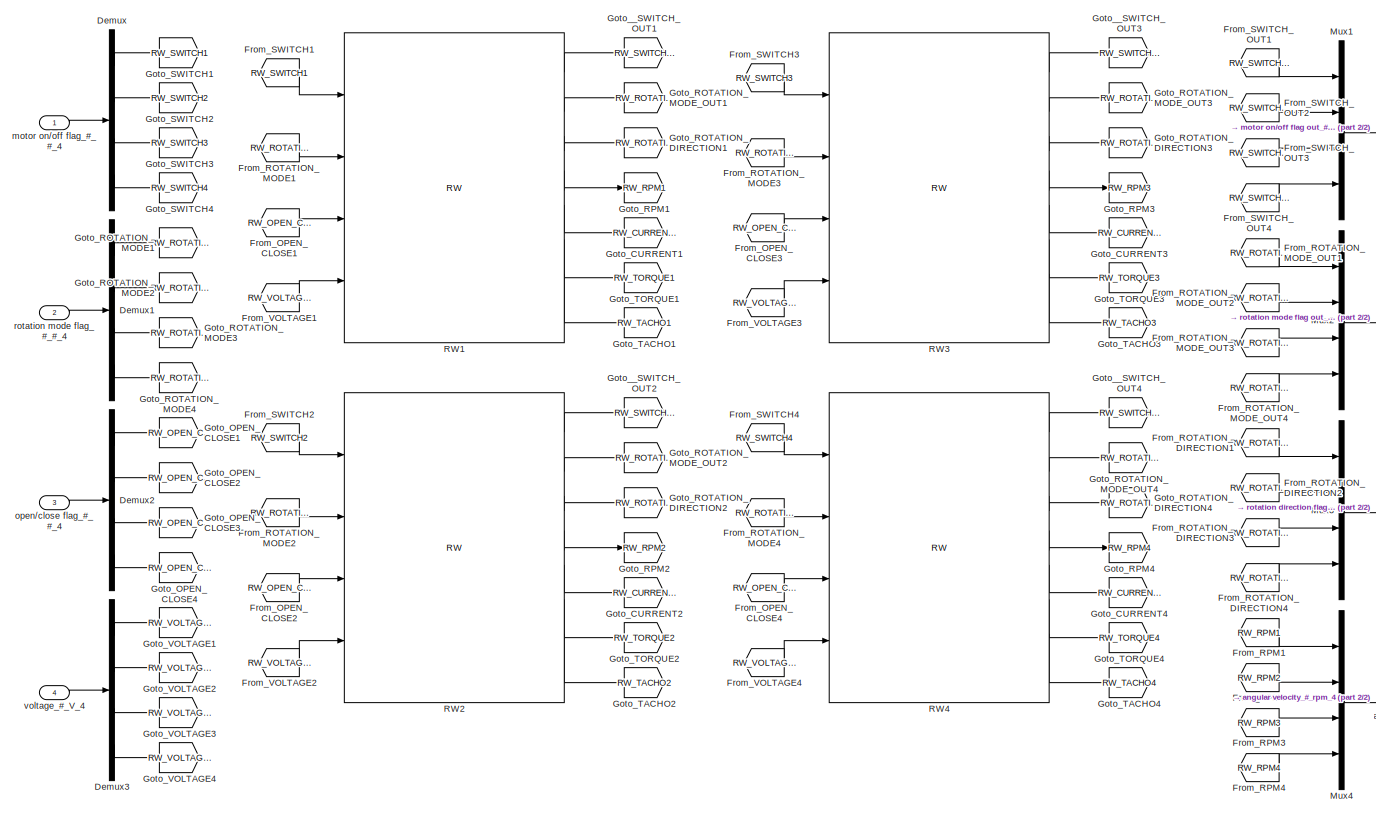
[diagram: four skew - part 1/2, most of the canvas]
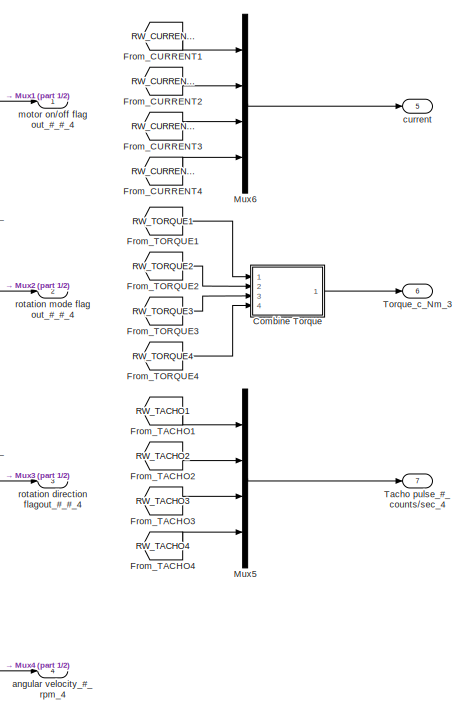
[diagram: four skew - part 2/2, right side, full height]
BLOCK [SubSystem] four skew
  FunctionWithSeparateData = off
  MaskHideContents = off
  MinAlgLoopOccurrences = off
  Opaque = off
  Ports = [4, 7]
  PropExecContextOutsideSubsystem = off
  RTWSystemCode = Auto
  RequestExecContextInheritance = off
  SID = 1047
BLOCK [SubSystem] four skew distribution
  FunctionWithSeparateData = off
  MaskHideContents = off
  MinAlgLoopOccurrences = off
  Opaque = off
  Ports = [2, 1]
  PropExecContextOutsideSubsystem = off
  RTWSystemCode = Auto
  RequestExecContextInheritance = off
  SID = 917
BLOCK [MultiPortSwitch] four skew distribution/Multiport\nSwitch
  DataPortIndices = {0,1,2,3,4}
  DataPortOrder = Specify indices
  InputSameDT = off
  Inputs = 5
  Ports = [6, 1]
  SID = 920
  SaturateOnIntegerOverflow = off
  zeroidx = off
BLOCK [Product] four skew distribution/Product
  InputSameDT = off
  Multiplication = Matrix(*)
  OutDataTypeStr = Inherit: Inherit via internal rule
  Ports = [2, 1]
  SID = 921
  SaturateOnIntegerOverflow = off
BLOCK [Inport] four skew distribution/com
  IconDisplay = Port number
  SID = 918
BLOCK [Inport] four skew distribution/four skew mode
  IconDisplay = Port number
  Port = 2
  SID = 919
BLOCK [Constant] four skew distribution/four_skew_D0
  SID = 922
  Value = four_skew_D0
BLOCK [Constant] four skew distribution/four_skew_D1
  SID = 923
  Value = four_skew_D1
BLOCK [Constant] four skew distribution/four_skew_D2
  SID = 924
  Value = four_skew_D2
BLOCK [Constant] four skew distribution/four_skew_D3
  SID = 925
  Value = four_skew_D3
BLOCK [Constant] four skew distribution/four_skew_D4
  SID = 926
  Value = four_skew_D4
BLOCK [Outport] four skew distribution/voltage
  IconDisplay = Port number
  SID = 927
BLOCK [SubSystem] four skew/Combine Torque
  ErrorFcn = Stateflow.Translate.translate
  FunctionWithSeparateData = off
  MaskDescription = Embedded MATLAB block
  MaskDisplay = bgColor = Simulink.Root.ColorString2Rgb(get_param(gcbh, 'BackgroundColor')); image(imread('private/eml_membrane_16.png','png','BackgroundColor',bgColor(1:3)),'center'); disp([10 10 'four_skew_combine']);  <repeated x5 — deduplicated; at blocks: Combine Torque, Combine Torque1>
  MaskHideContents = off
  MaskIconFrame = on
  MaskIconOpaque = off
  MaskIconRotate = none
  MaskIconUnits = normalized
  MaskPortRotate = default
  MaskSelfModifiable = on
  MaskType = Stateflow
  MinAlgLoopOccurrences = off
  Opaque = off
  PermitHierarchicalResolution = ExplicitOnly
  Ports = [4, 1]
  PropExecContextOutsideSubsystem = off
  RTWSystemCode = Auto
  RequestExecContextInheritance = off
  SID = 1207
  TreatAsAtomicUnit = on
BLOCK [Demux] four skew/Combine Torque/ Demux 
  Outputs = 1
  Ports = [1, 1]
  SID = 1207::24
BLOCK [S-Function] four skew/Combine Torque/ SFunction 
  EnableBusSupport = off
  FunctionName = sf_sfun
  PortCounts = [4 2]
  Ports = [4, 2]
  SID = 1207::23
  Tag = Stateflow S-Function lib_component 1
BLOCK [Terminator] four skew/Combine Torque/ Terminator 
  SID = 1207::26
BLOCK [Outport] four skew/Combine Torque/T
  IconDisplay = Port number
  SID = 1207::5
BLOCK [Inport] four skew/Combine Torque/T1
  IconDisplay = Port number
  SID = 1207::1
BLOCK [Inport] four skew/Combine Torque/T2
  IconDisplay = Port number
  Port = 2
  SID = 1207::18
BLOCK [Inport] four skew/Combine Torque/T3
  IconDisplay = Port number
  Port = 3
  SID = 1207::19
BLOCK [Inport] four skew/Combine Torque/T4
  IconDisplay = Port number
  Port = 4
  SID = 1207::20
BLOCK [Demux] four skew/Demux
  DisplayOption = bar
  Ports = [1, 4]
  SID = 1208
BLOCK [Demux] four skew/Demux1
  DisplayOption = bar
  Ports = [1, 4]
  SID = 1312
BLOCK [Demux] four skew/Demux2
  DisplayOption = bar
  Ports = [1, 4]
  SID = 1313
BLOCK [Demux] four skew/Demux3
  DisplayOption = bar
  Ports = [1, 4]
  SID = 1314
BLOCK [From] four skew/From_CURRENT1
  GotoTag = RW_CURRENT1
  SID = 1349
BLOCK [From] four skew/From_CURRENT2
  GotoTag = RW_CURRENT2
  SID = 1367
BLOCK [From] four skew/From_CURRENT3
  GotoTag = RW_CURRENT3
  SID = 1369
BLOCK [From] four skew/From_CURRENT4
  GotoTag = RW_CURRENT4
  SID = 1370
BLOCK [From] four skew/From_OPEN_CLOSE1
  GotoTag = RW_OPEN_CLOSE1
  SID = 1259
BLOCK [From] four skew/From_OPEN_CLOSE2
  GotoTag = RW_OPEN_CLOSE2
  SID = 1299
BLOCK [From] four skew/From_OPEN_CLOSE3
  GotoTag = RW_OPEN_CLOSE3
  SID = 1320
BLOCK [From] four skew/From_OPEN_CLOSE4
  GotoTag = RW_OPEN_CLOSE4
  SID = 1321
BLOCK [From] four skew/From_ROTATION_DIRECTION1
  GotoTag = RW_ROTATION_DIRECTION1
  SID = 1347
BLOCK [From] four skew/From_ROTATION_DIRECTION2
  GotoTag = RW_ROTATION_DIRECTION2
  SID = 1355
BLOCK [From] four skew/From_ROTATION_DIRECTION3
  GotoTag = RW_ROTATION_DIRECTION3
  SID = 1359
BLOCK [From] four skew/From_ROTATION_DIRECTION4
  GotoTag = RW_ROTATION_DIRECTION4
  SID = 1360
BLOCK [From] four skew/From_ROTATION_MODE1
  GotoTag = RW_ROTATION_MODE1
  SID = 1258
BLOCK [From] four skew/From_ROTATION_MODE2
  GotoTag = RW_ROTATION_MODE2
  SID = 1300
BLOCK [From] four skew/From_ROTATION_MODE3
  GotoTag = RW_ROTATION_MODE3
  SID = 1322
BLOCK [From] four skew/From_ROTATION_MODE4
  GotoTag = RW_ROTATION_MODE4
  SID = 1323
BLOCK [From] four skew/From_ROTATION_MODE_OUT1
  GotoTag = RW_ROTATION_MODE_OUT1
  SID = 1319
BLOCK [From] four skew/From_ROTATION_MODE_OUT2
  GotoTag = RW_ROTATION_MODE_OUT2
  SID = 1356
BLOCK [From] four skew/From_ROTATION_MODE_OUT3
  GotoTag = RW_ROTATION_MODE_OUT3
  SID = 1361
BLOCK [From] four skew/From_ROTATION_MODE_OUT4
  GotoTag = RW_ROTATION_MODE_OUT4
  SID = 1362
BLOCK [From] four skew/From_RPM1
  GotoTag = RW_RPM1
  SID = 1348
BLOCK [From] four skew/From_RPM2
  GotoTag = RW_RPM2
  SID = 1357
BLOCK [From] four skew/From_RPM3
  GotoTag = RW_RPM3
  SID = 1363
BLOCK [From] four skew/From_RPM4
  GotoTag = RW_RPM4
  SID = 1364
BLOCK [From] four skew/From_SWITCH1
  GotoTag = RW_SWITCH1
  SID = 1257
BLOCK [From] four skew/From_SWITCH2
  GotoTag = RW_SWITCH2
  SID = 1301
BLOCK [From] four skew/From_SWITCH3
  GotoTag = RW_SWITCH3
  SID = 1324
BLOCK [From] four skew/From_SWITCH4
  GotoTag = RW_SWITCH4
  SID = 1325
BLOCK [From] four skew/From_SWITCH_OUT1
  GotoTag = RW_SWITCH_OUT1
  SID = 1311
BLOCK [From] four skew/From_SWITCH_OUT2
  GotoTag = RW_SWITCH_OUT2
  SID = 1358
BLOCK [From] four skew/From_SWITCH_OUT3
  GotoTag = RW_SWITCH_OUT3
  SID = 1365
BLOCK [From] four skew/From_SWITCH_OUT4
  GotoTag = RW_SWITCH_OUT4
  SID = 1366
BLOCK [From] four skew/From_TACHO1
  GotoTag = RW_TACHO1
  SID = 1350
BLOCK [From] four skew/From_TACHO2
  GotoTag = RW_TACHO2
  SID = 1368
BLOCK [From] four skew/From_TACHO3
  GotoTag = RW_TACHO3
  SID = 1371
BLOCK [From] four skew/From_TACHO4
  GotoTag = RW_TACHO4
  SID = 1372
BLOCK [From] four skew/From_TORQUE1
  GotoTag = RW_TORQUE1
  SID = 1351
BLOCK [From] four skew/From_TORQUE2
  GotoTag = RW_TORQUE2
  SID = 1352
BLOCK [From] four skew/From_TORQUE3
  GotoTag = RW_TORQUE3
  SID = 1353
BLOCK [From] four skew/From_TORQUE4
  GotoTag = RW_TORQUE4
  SID = 1354
BLOCK [From] four skew/From_VOLTAGE1
  GotoTag = RW_VOLTAGE1
  SID = 1265
BLOCK [From] four skew/From_VOLTAGE2
  GotoTag = RW_VOLTAGE2
  SID = 1302
BLOCK [From] four skew/From_VOLTAGE3
  GotoTag = RW_VOLTAGE3
  SID = 1326
BLOCK [From] four skew/From_VOLTAGE4
  GotoTag = RW_VOLTAGE4
  SID = 1327
BLOCK [Goto] four skew/Goto_CURRENT1
  GotoTag = RW_CURRENT1
  SID = 1284
  TagVisibility = local
BLOCK [Goto] four skew/Goto_CURRENT2
  GotoTag = RW_CURRENT2
  SID = 1303
  TagVisibility = local
BLOCK [Goto] four skew/Goto_CURRENT3
  GotoTag = RW_CURRENT3
  SID = 1328
  TagVisibility = local
BLOCK [Goto] four skew/Goto_CURRENT4
  GotoTag = RW_CURRENT4
  SID = 1329
  TagVisibility = local
BLOCK [Goto] four skew/Goto_OPEN_CLOSE1
  GotoTag = RW_OPEN_CLOSE1
  SID = 1248
  TagVisibility = local
BLOCK [Goto] four skew/Goto_OPEN_CLOSE2
  GotoTag = RW_OPEN_CLOSE2
  SID = 1293
  TagVisibility = local
BLOCK [Goto] four skew/Goto_OPEN_CLOSE3
  GotoTag = RW_OPEN_CLOSE3
  SID = 1294
  TagVisibility = local
BLOCK [Goto] four skew/Goto_OPEN_CLOSE4
  GotoTag = RW_OPEN_CLOSE4
  SID = 1295
  TagVisibility = local
BLOCK [Goto] four skew/Goto_ROTATION_DIRECTION1
  GotoTag = RW_ROTATION_DIRECTION1
  SID = 1282
  TagVisibility = local
BLOCK [Goto] four skew/Goto_ROTATION_DIRECTION2
  GotoTag = RW_ROTATION_DIRECTION2
  SID = 1304
  TagVisibility = local
BLOCK [Goto] four skew/Goto_ROTATION_DIRECTION3
  GotoTag = RW_ROTATION_DIRECTION3
  SID = 1330
  TagVisibility = local
BLOCK [Goto] four skew/Goto_ROTATION_DIRECTION4
  GotoTag = RW_ROTATION_DIRECTION4
  SID = 1331
  TagVisibility = local
BLOCK [Goto] four skew/Goto_ROTATION_MODE1
  GotoTag = RW_ROTATION_MODE1
  SID = 1240
  TagVisibility = local
BLOCK [Goto] four skew/Goto_ROTATION_MODE2
  GotoTag = RW_ROTATION_MODE2
  SID = 1290
  TagVisibility = local
BLOCK [Goto] four skew/Goto_ROTATION_MODE3
  GotoTag = RW_ROTATION_MODE3
  SID = 1291
  TagVisibility = local
BLOCK [Goto] four skew/Goto_ROTATION_MODE4
  GotoTag = RW_ROTATION_MODE4
  SID = 1292
  TagVisibility = local
BLOCK [Goto] four skew/Goto_ROTATION_MODE_OUT1
  GotoTag = RW_ROTATION_MODE_OUT1
  SID = 1279
  TagVisibility = local
BLOCK [Goto] four skew/Goto_ROTATION_MODE_OUT2
  GotoTag = RW_ROTATION_MODE_OUT2
  SID = 1305
  TagVisibility = local
BLOCK [Goto] four skew/Goto_ROTATION_MODE_OUT3
  GotoTag = RW_ROTATION_MODE_OUT3
  SID = 1332
  TagVisibility = local
BLOCK [Goto] four skew/Goto_ROTATION_MODE_OUT4
  GotoTag = RW_ROTATION_MODE_OUT4
  SID = 1333
  TagVisibility = local
BLOCK [Goto] four skew/Goto_RPM1
  GotoTag = RW_RPM1
  SID = 1283
  TagVisibility = local
BLOCK [Goto] four skew/Goto_RPM2
  GotoTag = RW_RPM2
  SID = 1306
  TagVisibility = local
BLOCK [Goto] four skew/Goto_RPM3
  GotoTag = RW_RPM3
  SID = 1334
  TagVisibility = local
BLOCK [Goto] four skew/Goto_RPM4
  GotoTag = RW_RPM4
  SID = 1335
  TagVisibility = local
BLOCK [Goto] four skew/Goto_SWITCH1
  GotoTag = RW_SWITCH1
  SID = 1235
  TagVisibility = local
BLOCK [Goto] four skew/Goto_SWITCH2
  GotoTag = RW_SWITCH2
  SID = 1287
  TagVisibility = local
BLOCK [Goto] four skew/Goto_SWITCH3
  GotoTag = RW_SWITCH3
  SID = 1288
  TagVisibility = local
BLOCK [Goto] four skew/Goto_SWITCH4
  GotoTag = RW_SWITCH4
  SID = 1289
  TagVisibility = local
BLOCK [Goto] four skew/Goto_TACHO1
  GotoTag = RW_TACHO1
  SID = 1286
  TagVisibility = local
BLOCK [Goto] four skew/Goto_TACHO2
  GotoTag = RW_TACHO2
  SID = 1307
  TagVisibility = local
BLOCK [Goto] four skew/Goto_TACHO3
  GotoTag = RW_TACHO3
  SID = 1336
  TagVisibility = local
BLOCK [Goto] four skew/Goto_TACHO4
  GotoTag = RW_TACHO4
  SID = 1337
  TagVisibility = local
BLOCK [Goto] four skew/Goto_TORQUE1
  GotoTag = RW_TORQUE1
  SID = 1285
  TagVisibility = local
BLOCK [Goto] four skew/Goto_TORQUE2
  GotoTag = RW_TORQUE2
  SID = 1308
  TagVisibility = local
BLOCK [Goto] four skew/Goto_TORQUE3
  GotoTag = RW_TORQUE3
  SID = 1338
  TagVisibility = local
BLOCK [Goto] four skew/Goto_TORQUE4
  GotoTag = RW_TORQUE4
  SID = 1339
  TagVisibility = local
BLOCK [Goto] four skew/Goto_VOLTAGE1
  GotoTag = RW_VOLTAGE1
  SID = 1252
  TagVisibility = local
BLOCK [Goto] four skew/Goto_VOLTAGE2
  GotoTag = RW_VOLTAGE2
  SID = 1296
  TagVisibility = local
BLOCK [Goto] four skew/Goto_VOLTAGE3
  GotoTag = RW_VOLTAGE3
  SID = 1297
  TagVisibility = local
BLOCK [Goto] four skew/Goto_VOLTAGE4
  GotoTag = RW_VOLTAGE4
  SID = 1298
  TagVisibility = local
BLOCK [Goto] four skew/Goto__SWITCH_OUT1
  GotoTag = RW_SWITCH_OUT1
  SID = 1278
  TagVisibility = local
BLOCK [Goto] four skew/Goto__SWITCH_OUT2
  GotoTag = RW_SWITCH_OUT2
  SID = 1309
  TagVisibility = local
BLOCK [Goto] four skew/Goto__SWITCH_OUT3
  GotoTag = RW_SWITCH_OUT3
  SID = 1340
  TagVisibility = local
BLOCK [Goto] four skew/Goto__SWITCH_OUT4
  GotoTag = RW_SWITCH_OUT4
  SID = 1341
  TagVisibility = local
BLOCK [Mux] four skew/Mux1
  DisplayOption = bar
  Ports = [4, 1]
  SID = 1213
BLOCK [Mux] four skew/Mux2
  DisplayOption = bar
  Ports = [4, 1]
  SID = 1316
BLOCK [Mux] four skew/Mux3
  DisplayOption = bar
  Ports = [4, 1]
  SID = 1317
BLOCK [Mux] four skew/Mux4
  DisplayOption = bar
  Ports = [4, 1]
  SID = 1318
BLOCK [Mux] four skew/Mux5
  DisplayOption = bar
  Ports = [4, 1]
  SID = 1345
BLOCK [Mux] four skew/Mux6
  DisplayOption = bar
  Ports = [4, 1]
  SID = 1346
BLOCK [Reference] four skew/RW1  REF=lib_component/RW  (lib defined in mdl_fb77b1e06893)
  FunctionWithSeparateData = off
  GeneratePreprocessorConditionals = off
  Ports = [4, 8]
  RTWMemSecDataConstants = Inherit from model
  RTWMemSecDataInternal = Inherit from model
  RTWMemSecDataParameters = Inherit from model
  RTWMemSecFuncExecute = Inherit from model
  RTWMemSecFuncInitTerm = Inherit from model
  SID = 1230
  ShowPortLabels = FromPortIcon
  SourceBlock = lib_component/RW
  SourceType = SubSystem
  SystemSampleTime = -1
BLOCK [Reference] four skew/RW2  REF=lib_component/RW  (lib defined in mdl_fb77b1e06893)
  FunctionWithSeparateData = off
  GeneratePreprocessorConditionals = off
  Ports = [4, 8]
  RTWMemSecDataConstants = Inherit from model
  RTWMemSecDataInternal = Inherit from model
  RTWMemSecDataParameters = Inherit from model
  RTWMemSecFuncExecute = Inherit from model
  RTWMemSecFuncInitTerm = Inherit from model
  SID = 1310
  ShowPortLabels = FromPortIcon
  SourceBlock = lib_component/RW
  SourceType = SubSystem
  SystemSampleTime = -1
BLOCK [Reference] four skew/RW3  REF=lib_component/RW  (lib defined in mdl_fb77b1e06893)
  FunctionWithSeparateData = off
  GeneratePreprocessorConditionals = off
  Ports = [4, 8]
  RTWMemSecDataConstants = Inherit from model
  RTWMemSecDataInternal = Inherit from model
  RTWMemSecDataParameters = Inherit from model
  RTWMemSecFuncExecute = Inherit from model
  RTWMemSecFuncInitTerm = Inherit from model
  SID = 1342
  ShowPortLabels = FromPortIcon
  SourceBlock = lib_component/RW
  SourceType = SubSystem
  SystemSampleTime = -1
BLOCK [Reference] four skew/RW4  REF=lib_component/RW  (lib defined in mdl_fb77b1e06893)
  FunctionWithSeparateData = off
  GeneratePreprocessorConditionals = off
  Ports = [4, 8]
  RTWMemSecDataConstants = Inherit from model
  RTWMemSecDataInternal = Inherit from model
  RTWMemSecDataParameters = Inherit from model
  RTWMemSecFuncExecute = Inherit from model
  RTWMemSecFuncInitTerm = Inherit from model
  SID = 1343
  ShowPortLabels = FromPortIcon
  SourceBlock = lib_component/RW
  SourceType = SubSystem
  SystemSampleTime = -1
BLOCK [Outport] four skew/Tacho pulse_#_counts//sec_4
  IconDisplay = Port number
  Port = 7
  SID = 1229
BLOCK [Outport] four skew/Torque_c_Nm_3
  IconDisplay = Port number
  Port = 6
  SID = 1228
BLOCK [Outport] four skew/angular velocity_#_rpm_4
  IconDisplay = Port number
  Port = 4
  SID = 1226
BLOCK [Outport] four skew/current
  IconDisplay = Port number
  Port = 5
  SID = 1227
BLOCK [Outport] four skew/motor on//off flag out_#_#_4
  IconDisplay = Port number
  SID = 1223
BLOCK [Inport] four skew/motor on//off flag_#_#_4
  IconDisplay = Port number
  SID = 1203
BLOCK [Inport] four skew/open//close flag_#_#_4
  IconDisplay = Port number
  Port = 3
  SID = 1205
BLOCK [Outport] four skew/rotation direction flagout_#_#_4
  IconDisplay = Port number
  Port = 3
  SID = 1225
BLOCK [Outport] four skew/rotation mode flag out_#_#_4
  IconDisplay = Port number
  Port = 2
  SID = 1224
BLOCK [Inport] four skew/rotation mode flag_#_#_4
  IconDisplay = Port number
  Port = 2
  SID = 1204
BLOCK [Inport] four skew/voltage_#_V_4
  IconDisplay = Port number
  Port = 4
  SID = 1206
BLOCK [SubSystem] three_RWs
  AncestorBlock = lib_component/three_one_skew
  FunctionWithSeparateData = off
  MaskHideContents = off
  MinAlgLoopOccurrences = off
  Opaque = off
  Ports = [4, 5]
  PropExecContextOutsideSubsystem = off
  RTWSystemCode = Auto
  RequestExecContextInheritance = off
  SID = 6699
BLOCK [SubSystem] three_RWs/Combine Torque
  ErrorFcn = Stateflow.Translate.translate
  FunctionWithSeparateData = off
  MaskDescription = Embedded MATLAB block
  MaskHideContents = off
  MaskIconFrame = on
  MaskIconOpaque = off
  MaskIconRotate = none
  MaskIconUnits = normalized
  MaskPortRotate = default
  MaskSelfModifiable = on
  MaskType = Stateflow
  MinAlgLoopOccurrences = off
  Opaque = off
  PermitHierarchicalResolution = ExplicitOnly
  Ports = [3, 1]
  PropExecContextOutsideSubsystem = off
  RTWSystemCode = Auto
  RequestExecContextInheritance = off
  SID = 6699:2972
  TreatAsAtomicUnit = on
BLOCK [Demux] three_RWs/Combine Torque/ Demux 
  Outputs = 1
  Ports = [1, 1]
  SID = 6699:2972::39
BLOCK [S-Function] three_RWs/Combine Torque/ SFunction 
  EnableBusSupport = off
  FunctionName = sf_sfun
  PortCounts = [3 2]
  Ports = [3, 2]
  SID = 6699:2972::38
  Tag = Stateflow S-Function lib_component 13
BLOCK [Terminator] three_RWs/Combine Torque/ Terminator 
  SID = 6699:2972::41
BLOCK [Outport] three_RWs/Combine Torque/T
  IconDisplay = Port number
  SID = 6699:2972::5
BLOCK [Inport] three_RWs/Combine Torque/T1
  IconDisplay = Port number
  SID = 6699:2972::1
BLOCK [Inport] three_RWs/Combine Torque/T2
  IconDisplay = Port number
  Port = 2
  SID = 6699:2972::18
BLOCK [Inport] three_RWs/Combine Torque/T3
  IconDisplay = Port number
  Port = 3
  SID = 6699:2972::19
BLOCK [SubSystem] three_RWs/Combine Torque1
  ErrorFcn = Stateflow.Translate.translate
  FunctionWithSeparateData = off
  MaskDescription = Embedded MATLAB block
  MaskHideContents = off
  MaskIconFrame = on
  MaskIconOpaque = off
  MaskIconRotate = none
  MaskIconUnits = normalized
  MaskPortRotate = default
  MaskSelfModifiable = on
  MaskType = Stateflow
  MinAlgLoopOccurrences = off
  Opaque = off
  PermitHierarchicalResolution = ExplicitOnly
  Ports = [4, 1]
  PropExecContextOutsideSubsystem = off
  RTWSystemCode = Auto
  RequestExecContextInheritance = off
  SID = 6699:2973
  TreatAsAtomicUnit = on
BLOCK [Demux] three_RWs/Combine Torque1/ Demux 
  Outputs = 1
  Ports = [1, 1]
  SID = 6699:2973::40
BLOCK [S-Function] three_RWs/Combine Torque1/ SFunction 
  EnableBusSupport = off
  FunctionName = sf_sfun
  PortCounts = [4 2]
  Ports = [4, 2]
  SID = 6699:2973::39
  Tag = Stateflow S-Function lib_component 14
BLOCK [Terminator] three_RWs/Combine Torque1/ Terminator 
  SID = 6699:2973::42
BLOCK [Inport] three_RWs/Combine Torque1/I
  IconDisplay = Port number
  Port = 4
  SID = 6699:2973::31
BLOCK [Outport] three_RWs/Combine Torque1/W
  IconDisplay = Port number
  SID = 6699:2973::5
BLOCK [Inport] three_RWs/Combine Torque1/W1
  IconDisplay = Port number
  SID = 6699:2973::1
BLOCK [Inport] three_RWs/Combine Torque1/W2
  IconDisplay = Port number
  Port = 2
  SID = 6699:2973::18
BLOCK [Inport] three_RWs/Combine Torque1/W3
  IconDisplay = Port number
  Port = 3
  SID = 6699:2973::19
BLOCK [Demux] three_RWs/Demux
  DisplayOption = bar
  Ports = [1, 4]
  SID = 6699:2976
BLOCK [Demux] three_RWs/Demux1
  DisplayOption = bar
  Ports = [1, 4]
  SID = 6699:2977
BLOCK [Demux] three_RWs/Demux2
  DisplayOption = bar
  Ports = [1, 4]
  SID = 6699:2978
BLOCK [From] three_RWs/From_ROTATION_DIRECTION1
  GotoTag = RW_ROTATION_DIRECTION1
  SID = 6699:5093
BLOCK [From] three_RWs/From_ROTATION_DIRECTION2
  GotoTag = RW_ROTATION_DIRECTION2
  SID = 6699:5094
BLOCK [From] three_RWs/From_ROTATION_DIRECTION3
  GotoTag = RW_ROTATION_DIRECTION3
  SID = 6699:5097
BLOCK [From] three_RWs/From_RPM1
  GotoTag = RW_RPM1
  SID = 6699:3000
BLOCK [From] three_RWs/From_RPM2
  GotoTag = RW_RPM2
  SID = 6699:5095
BLOCK [From] three_RWs/From_RPM3
  GotoTag = RW_RPM3
  SID = 6699:5098
BLOCK [From] three_RWs/From_TORQUE1
  GotoTag = RW_TORQUE1
  SID = 6699:3016
BLOCK [From] three_RWs/From_TORQUE2
  GotoTag = RW_TORQUE2
  SID = 6699:3017
BLOCK [From] three_RWs/From_TORQUE3
  GotoTag = RW_TORQUE3
  SID = 6699:3018
BLOCK [Goto] three_RWs/Goto_ROTATION_DIRECTION1
  GotoTag = RW_ROTATION_DIRECTION1
  SID = 6699:5071
  TagVisibility = local
BLOCK [Goto] three_RWs/Goto_ROTATION_DIRECTION2
  GotoTag = RW_ROTATION_DIRECTION2
  SID = 6699:5278
  TagVisibility = local
BLOCK [Goto] three_RWs/Goto_ROTATION_DIRECTION3
  GotoTag = RW_ROTATION_DIRECTION3
  SID = 6699:5283
  TagVisibility = local
BLOCK [Goto] three_RWs/Goto_RPM1
  GotoTag = RW_RPM1
  SID = 6699:5070
  TagVisibility = local
BLOCK [Goto] three_RWs/Goto_RPM2
  GotoTag = RW_RPM2
  SID = 6699:5279
  TagVisibility = local
BLOCK [Goto] three_RWs/Goto_RPM3
  GotoTag = RW_RPM3
  SID = 6699:5284
  TagVisibility = local
BLOCK [Goto] three_RWs/Goto_TORQUE1
  GotoTag = RW_TORQUE1
  SID = 6699:5069
  TagVisibility = local
BLOCK [Goto] three_RWs/Goto_TORQUE2
  GotoTag = RW_TORQUE2
  SID = 6699:5280
  TagVisibility = local
BLOCK [Goto] three_RWs/Goto_TORQUE3
  GotoTag = RW_TORQUE3
  SID = 6699:5285
  TagVisibility = local
BLOCK [SubSystem] three_RWs/MATLAB Function
  ErrorFcn = Stateflow.Translate.translate
  FunctionWithSeparateData = off
  MaskDescription = Embedded MATLAB block
  MaskHideContents = off
  MaskIconFrame = on
  MaskIconOpaque = off
  MaskIconRotate = none
  MaskIconUnits = normalized
  MaskPortRotate = default
  MaskSelfModifiable = on
  MaskType = Stateflow
  MinAlgLoopOccurrences = off
  Opaque = off
  PermitHierarchicalResolution = ExplicitOnly
  Ports = [2, 1]
  PropExecContextOutsideSubsystem = off
  RTWSystemCode = Auto
  RequestExecContextInheritance = off
  SID = 6699:5092
  TreatAsAtomicUnit = on
BLOCK [Demux] three_RWs/MATLAB Function/ Demux 
  Outputs = 1
  Ports = [1, 1]
  SID = 6699:5092::20
BLOCK [S-Function] three_RWs/MATLAB Function/ SFunction 
  EnableBusSupport = off
  FunctionName = sf_sfun
  PortCounts = [2 2]
  Ports = [2, 2]
  SID = 6699:5092::19
  Tag = Stateflow S-Function lib_component 15
BLOCK [Terminator] three_RWs/MATLAB Function/ Terminator 
  SID = 6699:5092::22
BLOCK [Inport] three_RWs/MATLAB Function/absrpm
  IconDisplay = Port number
  SID = 6699:5092::1
BLOCK [Inport] three_RWs/MATLAB Function/rotdir
  IconDisplay = Port number
  Port = 2
  SID = 6699:5092::18
BLOCK [Outport] three_RWs/MATLAB Function/rpm
  IconDisplay = Port number
  SID = 6699:5092::5
BLOCK [SubSystem] three_RWs/MATLAB Function1
  ErrorFcn = Stateflow.Translate.translate
  FunctionWithSeparateData = off
  MaskDescription = Embedded MATLAB block
  MaskHideContents = off
  MaskIconFrame = on
  MaskIconOpaque = off
  MaskIconRotate = none
  MaskIconUnits = normalized
  MaskPortRotate = default
  MaskSelfModifiable = on
  MaskType = Stateflow
  MinAlgLoopOccurrences = off
  Opaque = off
  PermitHierarchicalResolution = ExplicitOnly
  Ports = [2, 1]
  PropExecContextOutsideSubsystem = off
  RTWSystemCode = Auto
  RequestExecContextInheritance = off
  SID = 6699:5096
  TreatAsAtomicUnit = on
BLOCK [Demux] three_RWs/MATLAB Function1/ Demux 
  Outputs = 1
  Ports = [1, 1]
  SID = 6699:5096::24
BLOCK [S-Function] three_RWs/MATLAB Function1/ SFunction 
  EnableBusSupport = off
  FunctionName = sf_sfun
  PortCounts = [2 2]
  Ports = [2, 2]
  SID = 6699:5096::23
  Tag = Stateflow S-Function lib_component 16
BLOCK [Terminator] three_RWs/MATLAB Function1/ Terminator 
  SID = 6699:5096::26
BLOCK [Inport] three_RWs/MATLAB Function1/absrpm
  IconDisplay = Port number
  SID = 6699:5096::1
BLOCK [Inport] three_RWs/MATLAB Function1/rotdir
  IconDisplay = Port number
  Port = 2
  SID = 6699:5096::18
BLOCK [Outport] three_RWs/MATLAB Function1/rpm
  IconDisplay = Port number
  SID = 6699:5096::5
BLOCK [SubSystem] three_RWs/MATLAB Function2
  ErrorFcn = Stateflow.Translate.translate
  FunctionWithSeparateData = off
  MaskDescription = Embedded MATLAB block
  MaskHideContents = off
  MaskIconFrame = on
  MaskIconOpaque = off
  MaskIconRotate = none
  MaskIconUnits = normalized
  MaskPortRotate = default
  MaskSelfModifiable = on
  MaskType = Stateflow
  MinAlgLoopOccurrences = off
  Opaque = off
  PermitHierarchicalResolution = ExplicitOnly
  Ports = [2, 1]
  PropExecContextOutsideSubsystem = off
  RTWSystemCode = Auto
  RequestExecContextInheritance = off
  SID = 6699:5099
  TreatAsAtomicUnit = on
BLOCK [Demux] three_RWs/MATLAB Function2/ Demux 
  Outputs = 1
  Ports = [1, 1]
  SID = 6699:5099::28
BLOCK [S-Function] three_RWs/MATLAB Function2/ SFunction 
  EnableBusSupport = off
  FunctionName = sf_sfun
  PortCounts = [2 2]
  Ports = [2, 2]
  SID = 6699:5099::27
  Tag = Stateflow S-Function lib_component 17
BLOCK [Terminator] three_RWs/MATLAB Function2/ Terminator 
  SID = 6699:5099::30
BLOCK [Inport] three_RWs/MATLAB Function2/absrpm
  IconDisplay = Port number
  SID = 6699:5099::1
BLOCK [Inport] three_RWs/MATLAB Function2/rotdir
  IconDisplay = Port number
  Port = 2
  SID = 6699:5099::18
BLOCK [Outport] three_RWs/MATLAB Function2/rpm
  IconDisplay = Port number
  SID = 6699:5099::5
BLOCK [Mux] three_RWs/Mux
  DisplayOption = bar
  Inputs = 7
  Ports = [7, 1]
  SID = 6699:5066
BLOCK [Mux] three_RWs/Mux1
  DisplayOption = bar
  Inputs = 7
  Ports = [7, 1]
  SID = 6699:5281
BLOCK [Mux] three_RWs/Mux2
  DisplayOption = bar
  Inputs = 7
  Ports = [7, 1]
  SID = 6699:5286
BLOCK [Reference] three_RWs/RW1  REF=lib_component/RW  (lib defined in mdl_fb77b1e06893)
  FunctionWithSeparateData = off
  GeneratePreprocessorConditionals = off
  Ports = [4, 8]
  RTWMemSecDataConstants = Inherit from model
  RTWMemSecDataInternal = Inherit from model
  RTWMemSecDataParameters = Inherit from model
  RTWMemSecFuncExecute = Inherit from model
  RTWMemSecFuncInitTerm = Inherit from model
  SID = 6699:3074
  ShowPortLabels = FromPortIcon
  SourceBlock = lib_component/RW
  SourceType = SubSystem
  SystemSampleTime = -1
BLOCK [Inport] three_RWs/RW1_#_#_4
  IconDisplay = Port number
  SID = 6699:2967
BLOCK [Outport] three_RWs/RW1_status_#_#_7
  IconDisplay = Port number
  SID = 6699:5067
BLOCK [Reference] three_RWs/RW2  REF=lib_component/RW  (lib defined in mdl_fb77b1e06893)
  FunctionWithSeparateData = off
  GeneratePreprocessorConditionals = off
  Ports = [4, 8]
  RTWMemSecDataConstants = Inherit from model
  RTWMemSecDataInternal = Inherit from model
  RTWMemSecDataParameters = Inherit from model
  RTWMemSecFuncExecute = Inherit from model
  RTWMemSecFuncInitTerm = Inherit from model
  SID = 6699:3075
  ShowPortLabels = FromPortIcon
  SourceBlock = lib_component/RW
  SourceType = SubSystem
  SystemSampleTime = -1
BLOCK [Inport] three_RWs/RW2_#_#_4
  IconDisplay = Port number
  Port = 2
  SID = 6699:2968
BLOCK [Outport] three_RWs/RW2_status_#_#_7
  IconDisplay = Port number
  Port = 2
  SID = 6699:5282
BLOCK [Reference] three_RWs/RW3  REF=lib_component/RW  (lib defined in mdl_fb77b1e06893)
  FunctionWithSeparateData = off
  GeneratePreprocessorConditionals = off
  Ports = [4, 8]
  RTWMemSecDataConstants = Inherit from model
  RTWMemSecDataInternal = Inherit from model
  RTWMemSecDataParameters = Inherit from model
  RTWMemSecFuncExecute = Inherit from model
  RTWMemSecFuncInitTerm = Inherit from model
  SID = 6699:3076
  ShowPortLabels = FromPortIcon
  SourceBlock = lib_component/RW
  SourceType = SubSystem
  SystemSampleTime = -1
BLOCK [Inport] three_RWs/RW3_#_#_4
  IconDisplay = Port number
  Port = 3
  SID = 6699:2969
BLOCK [Outport] three_RWs/RW3_status_#_#_7
  IconDisplay = Port number
  Port = 3
  SID = 6699:5287
BLOCK [Outport] three_RWs/Torque_c_Nm_3
  IconDisplay = Port number
  Port = 4
  SID = 6699:3087
BLOCK [Inport] three_RWs/inertia_#_kgm2_1
  IconDisplay = Port number
  Port = 4
  SID = 6699:2971
BLOCK [Gain] three_RWs/rpm2rad
  Gain = 2*pi/60
  OutDataTypeStr = Inherit: Inherit via internal rule
  ParamDataTypeStr = Inherit: Inherit via internal rule
  SID = 6699:3078
  SaturateOnIntegerOverflow = off
BLOCK [Gain] three_RWs/rpm2rad1
  Gain = 2*pi/60
  OutDataTypeStr = Inherit: Inherit via internal rule
  ParamDataTypeStr = Inherit: Inherit via internal rule
  SID = 6699:3079
  SaturateOnIntegerOverflow = off
BLOCK [Gain] three_RWs/rpm2rad2
  Gain = 2*pi/60
  OutDataTypeStr = Inherit: Inherit via internal rule
  ParamDataTypeStr = Inherit: Inherit via internal rule
  SID = 6699:3080
  SaturateOnIntegerOverflow = off
BLOCK [Outport] three_RWs/wheemomentum_b_Nm_3
  IconDisplay = Port number
  Port = 5
  SID = 6699:3089
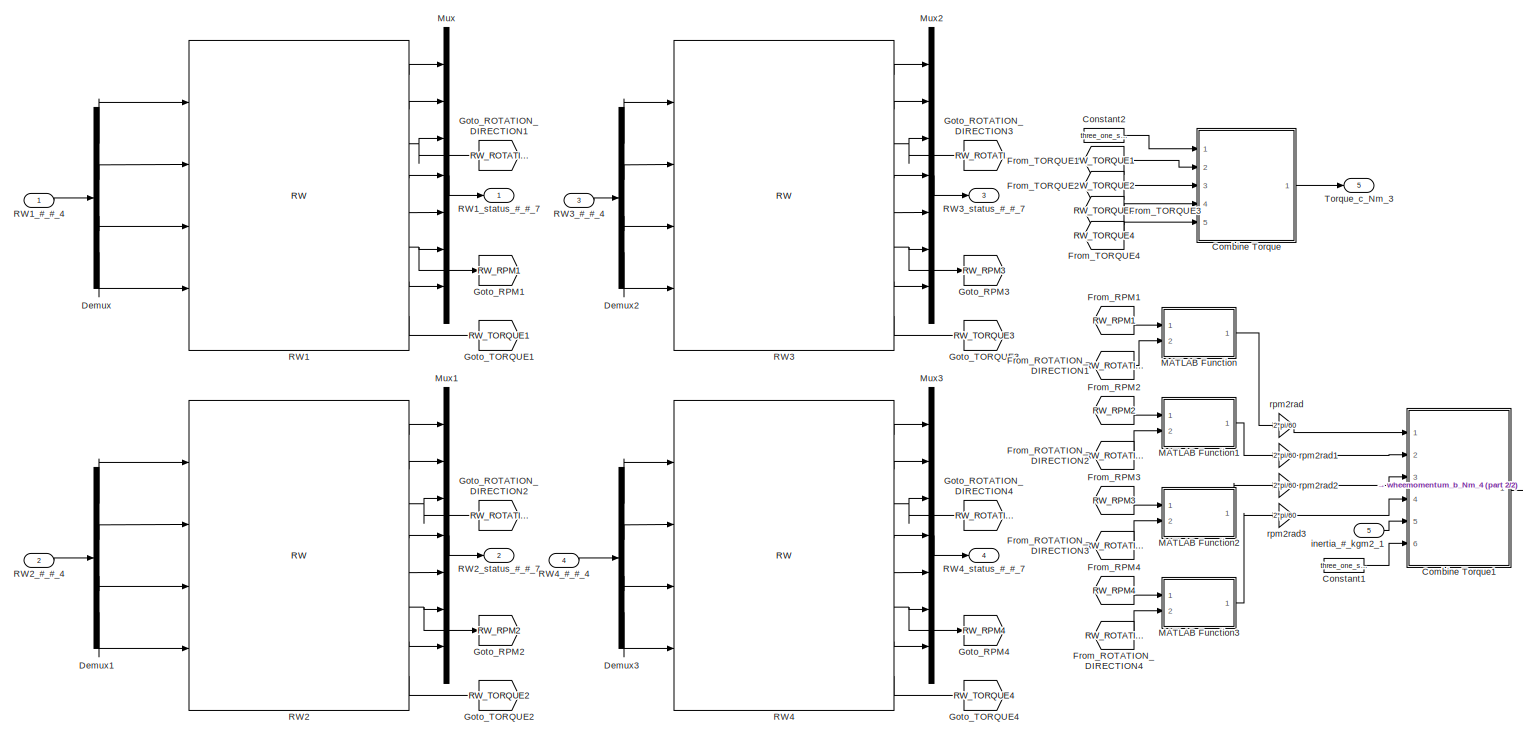
[diagram: three_one_skew - part 1/2, most of the canvas]
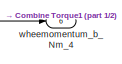
[diagram: three_one_skew - part 2/2, bottom right region]
BLOCK [SubSystem] three_one_skew
  FunctionWithSeparateData = off
  MaskHideContents = off
  MinAlgLoopOccurrences = off
  Opaque = off
  Ports = [5, 6]
  PropExecContextOutsideSubsystem = off
  RTWSystemCode = Auto
  RequestExecContextInheritance = off
  SID = 2964
BLOCK [SubSystem] three_one_skew distribution
  FunctionWithSeparateData = off
  MaskHideContents = off
  MinAlgLoopOccurrences = off
  Opaque = off
  Ports = [2, 1]
  PropExecContextOutsideSubsystem = off
  RTWSystemCode = Auto
  RequestExecContextInheritance = off
  SID = 2941
BLOCK [MultiPortSwitch] three_one_skew distribution/Multiport\nSwitch
  DataPortIndices = {0,1,2,3,4}
  DataPortOrder = Specify indices
  InputSameDT = off
  Inputs = 5
  Ports = [6, 1]
  SID = 2956
  SaturateOnIntegerOverflow = off
  zeroidx = off
BLOCK [Product] three_one_skew distribution/Product
  InputSameDT = off
  Multiplication = Matrix(*)
  OutDataTypeStr = Inherit: Inherit via internal rule
  Ports = [2, 1]
  SID = 2957
  SaturateOnIntegerOverflow = off
BLOCK [Outport] three_one_skew distribution/com_torque
  IconDisplay = Port number
  SID = 2963
BLOCK [Inport] three_one_skew distribution/four skew mode
  IconDisplay = Port number
  Port = 2
  SID = 2955
BLOCK [Inport] three_one_skew distribution/req_torque
  IconDisplay = Port number
  SID = 2954
BLOCK [Constant] three_one_skew distribution/three_one_skew_D0
  SID = 2958
  Value = three_one_skew_D0
BLOCK [Constant] three_one_skew distribution/three_one_skew_D1
  SID = 2959
  Value = three_one_skew_D1
BLOCK [Constant] three_one_skew distribution/three_one_skew_D2
  SID = 2960
  Value = three_one_skew_D2
BLOCK [Constant] three_one_skew distribution/three_one_skew_D3
  SID = 2961
  Value = three_one_skew_D3
BLOCK [Constant] three_one_skew distribution/three_one_skew_D4
  SID = 2962
  Value = three_one_skew_D4
BLOCK [SubSystem] three_one_skew/Combine Torque
  ErrorFcn = Stateflow.Translate.translate
  FunctionWithSeparateData = off
  MaskDescription = Embedded MATLAB block
  MaskHideContents = off
  MaskIconFrame = on
  MaskIconOpaque = off
  MaskIconRotate = none
  MaskIconUnits = normalized
  MaskPortRotate = default
  MaskSelfModifiable = on
  MaskType = Stateflow
  MinAlgLoopOccurrences = off
  Opaque = off
  PermitHierarchicalResolution = ExplicitOnly
  Ports = [5, 1]
  PropExecContextOutsideSubsystem = off
  RTWSystemCode = Auto
  RequestExecContextInheritance = off
  SID = 2972
  TreatAsAtomicUnit = on
BLOCK [Demux] three_one_skew/Combine Torque/ Demux 
  Outputs = 1
  Ports = [1, 1]
  SID = 2972::35
BLOCK [S-Function] three_one_skew/Combine Torque/ SFunction 
  EnableBusSupport = off
  FunctionName = sf_sfun
  PortCounts = [5 2]
  Ports = [5, 2]
  SID = 2972::34
  Tag = Stateflow S-Function lib_component 2
BLOCK [Terminator] three_one_skew/Combine Torque/ Terminator 
  SID = 2972::37
BLOCK [Outport] three_one_skew/Combine Torque/T
  IconDisplay = Port number
  SID = 2972::5
BLOCK [Inport] three_one_skew/Combine Torque/T1
  IconDisplay = Port number
  Port = 2
  SID = 2972::1
BLOCK [Inport] three_one_skew/Combine Torque/T2
  IconDisplay = Port number
  Port = 3
  SID = 2972::18
BLOCK [Inport] three_one_skew/Combine Torque/T3
  IconDisplay = Port number
  Port = 4
  SID = 2972::19
BLOCK [Inport] three_one_skew/Combine Torque/T4
  IconDisplay = Port number
  Port = 5
  SID = 2972::20
BLOCK [Inport] three_one_skew/Combine Torque/matrix_A
  IconDisplay = Port number
  SID = 2972::33
BLOCK [SubSystem] three_one_skew/Combine Torque1
  ErrorFcn = Stateflow.Translate.translate
  FunctionWithSeparateData = off
  MaskDescription = Embedded MATLAB block
  MaskHideContents = off
  MaskIconFrame = on
  MaskIconOpaque = off
  MaskIconRotate = none
  MaskIconUnits = normalized
  MaskPortRotate = default
  MaskSelfModifiable = on
  MaskType = Stateflow
  MinAlgLoopOccurrences = off
  Opaque = off
  PermitHierarchicalResolution = ExplicitOnly
  Ports = [6, 1]
  PropExecContextOutsideSubsystem = off
  RTWSystemCode = Auto
  RequestExecContextInheritance = off
  SID = 2973
  TreatAsAtomicUnit = on
BLOCK [Demux] three_one_skew/Combine Torque1/ Demux 
  Outputs = 1
  Ports = [1, 1]
  SID = 2973::36
BLOCK [S-Function] three_one_skew/Combine Torque1/ SFunction 
  EnableBusSupport = off
  FunctionName = sf_sfun
  PortCounts = [6 2]
  Ports = [6, 2]
  SID = 2973::35
  Tag = Stateflow S-Function lib_component 3
BLOCK [Terminator] three_one_skew/Combine Torque1/ Terminator 
  SID = 2973::38
BLOCK [Inport] three_one_skew/Combine Torque1/I
  IconDisplay = Port number
  Port = 5
  SID = 2973::31
BLOCK [Outport] three_one_skew/Combine Torque1/W
  IconDisplay = Port number
  SID = 2973::5
BLOCK [Inport] three_one_skew/Combine Torque1/W1
  IconDisplay = Port number
  SID = 2973::1
BLOCK [Inport] three_one_skew/Combine Torque1/W2
  IconDisplay = Port number
  Port = 2
  SID = 2973::18
BLOCK [Inport] three_one_skew/Combine Torque1/W3
  IconDisplay = Port number
  Port = 3
  SID = 2973::19
BLOCK [Inport] three_one_skew/Combine Torque1/W4
  IconDisplay = Port number
  Port = 4
  SID = 2973::20
BLOCK [Inport] three_one_skew/Combine Torque1/matrix_A
  IconDisplay = Port number
  Port = 6
  SID = 2973::34
BLOCK [Constant] three_one_skew/Constant1
  SID = 2974
  Value = three_one_skew_matrix
BLOCK [Constant] three_one_skew/Constant2
  SID = 2975
  Value = three_one_skew_matrix
BLOCK [Demux] three_one_skew/Demux
  DisplayOption = bar
  Ports = [1, 4]
  SID = 2976
BLOCK [Demux] three_one_skew/Demux1
  DisplayOption = bar
  Ports = [1, 4]
  SID = 2977
BLOCK [Demux] three_one_skew/Demux2
  DisplayOption = bar
  Ports = [1, 4]
  SID = 2978
BLOCK [Demux] three_one_skew/Demux3
  DisplayOption = bar
  Ports = [1, 4]
  SID = 2979
BLOCK [From] three_one_skew/From_ROTATION_DIRECTION1
  GotoTag = RW_ROTATION_DIRECTION1
  SID = 5093
BLOCK [From] three_one_skew/From_ROTATION_DIRECTION2
  GotoTag = RW_ROTATION_DIRECTION2
  SID = 5094
BLOCK [From] three_one_skew/From_ROTATION_DIRECTION3
  GotoTag = RW_ROTATION_DIRECTION3
  SID = 5097
BLOCK [From] three_one_skew/From_ROTATION_DIRECTION4
  GotoTag = RW_ROTATION_DIRECTION4
  SID = 5100
BLOCK [From] three_one_skew/From_RPM1
  GotoTag = RW_RPM1
  SID = 3000
BLOCK [From] three_one_skew/From_RPM2
  GotoTag = RW_RPM2
  SID = 5095
BLOCK [From] three_one_skew/From_RPM3
  GotoTag = RW_RPM3
  SID = 5098
BLOCK [From] three_one_skew/From_RPM4
  GotoTag = RW_RPM4
  SID = 5101
BLOCK [From] three_one_skew/From_TORQUE1
  GotoTag = RW_TORQUE1
  SID = 3016
BLOCK [From] three_one_skew/From_TORQUE2
  GotoTag = RW_TORQUE2
  SID = 3017
BLOCK [From] three_one_skew/From_TORQUE3
  GotoTag = RW_TORQUE3
  SID = 3018
BLOCK [From] three_one_skew/From_TORQUE4
  GotoTag = RW_TORQUE4
  SID = 3019
BLOCK [Goto] three_one_skew/Goto_ROTATION_DIRECTION1
  GotoTag = RW_ROTATION_DIRECTION1
  SID = 5071
  TagVisibility = local
BLOCK [Goto] three_one_skew/Goto_ROTATION_DIRECTION2
  GotoTag = RW_ROTATION_DIRECTION2
  SID = 5278
  TagVisibility = local
BLOCK [Goto] three_one_skew/Goto_ROTATION_DIRECTION3
  GotoTag = RW_ROTATION_DIRECTION3
  SID = 5283
  TagVisibility = local
BLOCK [Goto] three_one_skew/Goto_ROTATION_DIRECTION4
  GotoTag = RW_ROTATION_DIRECTION4
  SID = 5293
  TagVisibility = local
BLOCK [Goto] three_one_skew/Goto_RPM1
  GotoTag = RW_RPM1
  SID = 5070
  TagVisibility = local
BLOCK [Goto] three_one_skew/Goto_RPM2
  GotoTag = RW_RPM2
  SID = 5279
  TagVisibility = local
BLOCK [Goto] three_one_skew/Goto_RPM3
  GotoTag = RW_RPM3
  SID = 5284
  TagVisibility = local
BLOCK [Goto] three_one_skew/Goto_RPM4
  GotoTag = RW_RPM4
  SID = 5294
  TagVisibility = local
BLOCK [Goto] three_one_skew/Goto_TORQUE1
  GotoTag = RW_TORQUE1
  SID = 5069
  TagVisibility = local
BLOCK [Goto] three_one_skew/Goto_TORQUE2
  GotoTag = RW_TORQUE2
  SID = 5280
  TagVisibility = local
BLOCK [Goto] three_one_skew/Goto_TORQUE3
  GotoTag = RW_TORQUE3
  SID = 5285
  TagVisibility = local
BLOCK [Goto] three_one_skew/Goto_TORQUE4
  GotoTag = RW_TORQUE4
  SID = 5295
  TagVisibility = local
BLOCK [SubSystem] three_one_skew/MATLAB Function
  ErrorFcn = Stateflow.Translate.translate
  FunctionWithSeparateData = off
  MaskDescription = Embedded MATLAB block
  MaskHideContents = off
  MaskIconFrame = on
  MaskIconOpaque = off
  MaskIconRotate = none
  MaskIconUnits = normalized
  MaskPortRotate = default
  MaskSelfModifiable = on
  MaskType = Stateflow
  MinAlgLoopOccurrences = off
  Opaque = off
  PermitHierarchicalResolution = ExplicitOnly
  Ports = [2, 1]
  PropExecContextOutsideSubsystem = off
  RTWSystemCode = Auto
  RequestExecContextInheritance = off
  SID = 5092
  TreatAsAtomicUnit = on
BLOCK [Demux] three_one_skew/MATLAB Function/ Demux 
  Outputs = 1
  Ports = [1, 1]
  SID = 5092::15
BLOCK [S-Function] three_one_skew/MATLAB Function/ SFunction 
  EnableBusSupport = off
  FunctionName = sf_sfun
  PortCounts = [2 2]
  Ports = [2, 2]
  SID = 5092::14
  Tag = Stateflow S-Function lib_component 9
BLOCK [Terminator] three_one_skew/MATLAB Function/ Terminator 
  SID = 5092::17
BLOCK [Inport] three_one_skew/MATLAB Function/absrpm
  IconDisplay = Port number
  SID = 5092::1
BLOCK [Inport] three_one_skew/MATLAB Function/rotdir
  IconDisplay = Port number
  Port = 2
  SID = 5092::18
BLOCK [Outport] three_one_skew/MATLAB Function/rpm
  IconDisplay = Port number
  SID = 5092::5
BLOCK [SubSystem] three_one_skew/MATLAB Function1
  ErrorFcn = Stateflow.Translate.translate
  FunctionWithSeparateData = off
  MaskDescription = Embedded MATLAB block
  MaskHideContents = off
  MaskIconFrame = on
  MaskIconOpaque = off
  MaskIconRotate = none
  MaskIconUnits = normalized
  MaskPortRotate = default
  MaskSelfModifiable = on
  MaskType = Stateflow
  MinAlgLoopOccurrences = off
  Opaque = off
  PermitHierarchicalResolution = ExplicitOnly
  Ports = [2, 1]
  PropExecContextOutsideSubsystem = off
  RTWSystemCode = Auto
  RequestExecContextInheritance = off
  SID = 5096
  TreatAsAtomicUnit = on
BLOCK [Demux] three_one_skew/MATLAB Function1/ Demux 
  Outputs = 1
  Ports = [1, 1]
  SID = 5096::20
BLOCK [S-Function] three_one_skew/MATLAB Function1/ SFunction 
  EnableBusSupport = off
  FunctionName = sf_sfun
  PortCounts = [2 2]
  Ports = [2, 2]
  SID = 5096::19
  Tag = Stateflow S-Function lib_component 10
BLOCK [Terminator] three_one_skew/MATLAB Function1/ Terminator 
  SID = 5096::22
BLOCK [Inport] three_one_skew/MATLAB Function1/absrpm
  IconDisplay = Port number
  SID = 5096::1
BLOCK [Inport] three_one_skew/MATLAB Function1/rotdir
  IconDisplay = Port number
  Port = 2
  SID = 5096::18
BLOCK [Outport] three_one_skew/MATLAB Function1/rpm
  IconDisplay = Port number
  SID = 5096::5
BLOCK [SubSystem] three_one_skew/MATLAB Function2
  ErrorFcn = Stateflow.Translate.translate
  FunctionWithSeparateData = off
  MaskDescription = Embedded MATLAB block
  MaskHideContents = off
  MaskIconFrame = on
  MaskIconOpaque = off
  MaskIconRotate = none
  MaskIconUnits = normalized
  MaskPortRotate = default
  MaskSelfModifiable = on
  MaskType = Stateflow
  MinAlgLoopOccurrences = off
  Opaque = off
  PermitHierarchicalResolution = ExplicitOnly
  Ports = [2, 1]
  PropExecContextOutsideSubsystem = off
  RTWSystemCode = Auto
  RequestExecContextInheritance = off
  SID = 5099
  TreatAsAtomicUnit = on
BLOCK [Demux] three_one_skew/MATLAB Function2/ Demux 
  Outputs = 1
  Ports = [1, 1]
  SID = 5099::24
BLOCK [S-Function] three_one_skew/MATLAB Function2/ SFunction 
  EnableBusSupport = off
  FunctionName = sf_sfun
  PortCounts = [2 2]
  Ports = [2, 2]
  SID = 5099::23
  Tag = Stateflow S-Function lib_component 11
BLOCK [Terminator] three_one_skew/MATLAB Function2/ Terminator 
  SID = 5099::26
BLOCK [Inport] three_one_skew/MATLAB Function2/absrpm
  IconDisplay = Port number
  SID = 5099::1
BLOCK [Inport] three_one_skew/MATLAB Function2/rotdir
  IconDisplay = Port number
  Port = 2
  SID = 5099::18
BLOCK [Outport] three_one_skew/MATLAB Function2/rpm
  IconDisplay = Port number
  SID = 5099::5
BLOCK [SubSystem] three_one_skew/MATLAB Function3
  ErrorFcn = Stateflow.Translate.translate
  FunctionWithSeparateData = off
  MaskDescription = Embedded MATLAB block
  MaskHideContents = off
  MaskIconFrame = on
  MaskIconOpaque = off
  MaskIconRotate = none
  MaskIconUnits = normalized
  MaskPortRotate = default
  MaskSelfModifiable = on
  MaskType = Stateflow
  MinAlgLoopOccurrences = off
  Opaque = off
  PermitHierarchicalResolution = ExplicitOnly
  Ports = [2, 1]
  PropExecContextOutsideSubsystem = off
  RTWSystemCode = Auto
  RequestExecContextInheritance = off
  SID = 5102
  TreatAsAtomicUnit = on
BLOCK [Demux] three_one_skew/MATLAB Function3/ Demux 
  Outputs = 1
  Ports = [1, 1]
  SID = 5102::28
BLOCK [S-Function] three_one_skew/MATLAB Function3/ SFunction 
  EnableBusSupport = off
  FunctionName = sf_sfun
  PortCounts = [2 2]
  Ports = [2, 2]
  SID = 5102::27
  Tag = Stateflow S-Function lib_component 12
BLOCK [Terminator] three_one_skew/MATLAB Function3/ Terminator 
  SID = 5102::30
BLOCK [Inport] three_one_skew/MATLAB Function3/absrpm
  IconDisplay = Port number
  SID = 5102::1
BLOCK [Inport] three_one_skew/MATLAB Function3/rotdir
  IconDisplay = Port number
  Port = 2
  SID = 5102::18
BLOCK [Outport] three_one_skew/MATLAB Function3/rpm
  IconDisplay = Port number
  SID = 5102::5
BLOCK [Mux] three_one_skew/Mux
  DisplayOption = bar
  Inputs = 7
  Ports = [7, 1]
  SID = 5066
BLOCK [Mux] three_one_skew/Mux1
  DisplayOption = bar
  Inputs = 7
  Ports = [7, 1]
  SID = 5281
BLOCK [Mux] three_one_skew/Mux2
  DisplayOption = bar
  Inputs = 7
  Ports = [7, 1]
  SID = 5286
BLOCK [Mux] three_one_skew/Mux3
  DisplayOption = bar
  Inputs = 7
  Ports = [7, 1]
  SID = 5296
BLOCK [Reference] three_one_skew/RW1  REF=lib_component/RW  (lib defined in mdl_fb77b1e06893)
  FunctionWithSeparateData = off
  GeneratePreprocessorConditionals = off
  Ports = [4, 8]
  RTWMemSecDataConstants = Inherit from model
  RTWMemSecDataInternal = Inherit from model
  RTWMemSecDataParameters = Inherit from model
  RTWMemSecFuncExecute = Inherit from model
  RTWMemSecFuncInitTerm = Inherit from model
  SID = 3074
  ShowPortLabels = FromPortIcon
  SourceBlock = lib_component/RW
  SourceType = SubSystem
  SystemSampleTime = -1
BLOCK [Inport] three_one_skew/RW1_#_#_4
  IconDisplay = Port number
  SID = 2967
BLOCK [Outport] three_one_skew/RW1_status_#_#_7
  IconDisplay = Port number
  SID = 5067
BLOCK [Reference] three_one_skew/RW2  REF=lib_component/RW  (lib defined in mdl_fb77b1e06893)
  FunctionWithSeparateData = off
  GeneratePreprocessorConditionals = off
  Ports = [4, 8]
  RTWMemSecDataConstants = Inherit from model
  RTWMemSecDataInternal = Inherit from model
  RTWMemSecDataParameters = Inherit from model
  RTWMemSecFuncExecute = Inherit from model
  RTWMemSecFuncInitTerm = Inherit from model
  SID = 3075
  ShowPortLabels = FromPortIcon
  SourceBlock = lib_component/RW
  SourceType = SubSystem
  SystemSampleTime = -1
BLOCK [Inport] three_one_skew/RW2_#_#_4
  IconDisplay = Port number
  Port = 2
  SID = 2968
BLOCK [Outport] three_one_skew/RW2_status_#_#_7
  IconDisplay = Port number
  Port = 2
  SID = 5282
BLOCK [Reference] three_one_skew/RW3  REF=lib_component/RW  (lib defined in mdl_fb77b1e06893)
  FunctionWithSeparateData = off
  GeneratePreprocessorConditionals = off
  Ports = [4, 8]
  RTWMemSecDataConstants = Inherit from model
  RTWMemSecDataInternal = Inherit from model
  RTWMemSecDataParameters = Inherit from model
  RTWMemSecFuncExecute = Inherit from model
  RTWMemSecFuncInitTerm = Inherit from model
  SID = 3076
  ShowPortLabels = FromPortIcon
  SourceBlock = lib_component/RW
  SourceType = SubSystem
  SystemSampleTime = -1
BLOCK [Inport] three_one_skew/RW3_#_#_4
  IconDisplay = Port number
  Port = 3
  SID = 2969
BLOCK [Outport] three_one_skew/RW3_status_#_#_7
  IconDisplay = Port number
  Port = 3
  SID = 5287
BLOCK [Reference] three_one_skew/RW4  REF=lib_component/RW  (lib defined in mdl_fb77b1e06893)
  FunctionWithSeparateData = off
  GeneratePreprocessorConditionals = off
  Ports = [4, 8]
  RTWMemSecDataConstants = Inherit from model
  RTWMemSecDataInternal = Inherit from model
  RTWMemSecDataParameters = Inherit from model
  RTWMemSecFuncExecute = Inherit from model
  RTWMemSecFuncInitTerm = Inherit from model
  SID = 3077
  ShowPortLabels = FromPortIcon
  SourceBlock = lib_component/RW
  SourceType = SubSystem
  SystemSampleTime = -1
BLOCK [Inport] three_one_skew/RW4_#_#_4
  IconDisplay = Port number
  Port = 4
  SID = 2970
BLOCK [Outport] three_one_skew/RW4_status_#_#_7
  IconDisplay = Port number
  Port = 4
  SID = 5297
BLOCK [Outport] three_one_skew/Torque_c_Nm_3
  IconDisplay = Port number
  Port = 5
  SID = 3087
BLOCK [Inport] three_one_skew/inertia_#_kgm2_1
  IconDisplay = Port number
  Port = 5
  SID = 2971
BLOCK [Gain] three_one_skew/rpm2rad
  Gain = 2*pi/60
  OutDataTypeStr = Inherit: Inherit via internal rule
  ParamDataTypeStr = Inherit: Inherit via internal rule
  SID = 3078
  SaturateOnIntegerOverflow = off
BLOCK [Gain] three_one_skew/rpm2rad1
  Gain = 2*pi/60
  OutDataTypeStr = Inherit: Inherit via internal rule
  ParamDataTypeStr = Inherit: Inherit via internal rule
  SID = 3079
  SaturateOnIntegerOverflow = off
BLOCK [Gain] three_one_skew/rpm2rad2
  Gain = 2*pi/60
  OutDataTypeStr = Inherit: Inherit via internal rule
  ParamDataTypeStr = Inherit: Inherit via internal rule
  SID = 3080
  SaturateOnIntegerOverflow = off
BLOCK [Gain] three_one_skew/rpm2rad3
  Gain = 2*pi/60
  OutDataTypeStr = Inherit: Inherit via internal rule
  ParamDataTypeStr = Inherit: Inherit via internal rule
  SID = 3081
  SaturateOnIntegerOverflow = off
BLOCK [Outport] three_one_skew/wheemomentum_b_Nm_4
  IconDisplay = Port number
  Port = 6
  SID = 3089
BLOCK [TransferFcn] verySimpleRW
  Denominator = [1 0.21217]
  Numerator = [0.005 0]
  SID = 6719
ANNOTATION NSAS: x
ANNOTATION NSAS: y
ANNOTATION RW: CW=0, CCW=1\n(look from connector side)
ANNOTATION RW: on=1, off=0
ANNOTATION RW: open=0, close=1
LINE GAS/Demux:1 -> GAS/Transfer Fcn:1
LINE GAS/Demux:2 -> GAS/Transfer Fcn1:1
LINE GAS/Demux:3 -> GAS/Transfer Fcn2:1
LINE GAS/Magnetic Field_c_nT_3:1 -> GAS/Demux:1
LINE GAS/Mux1:1 -> GAS/Voltage_#_V_4:1
LINE GAS/Mux:1 -> GAS/Sum:2
NET GAS/Reference\nVoltage:1 -> GAS/Mux1:2, GAS/Sum:3
LINE GAS/Sum:1 -> GAS/Mux1:1
LINE GAS/Transfer Fcn1:1 -> GAS/Mux:2
LINE GAS/Transfer Fcn2:1 -> GAS/Mux:3
LINE GAS/Transfer Fcn:1 -> GAS/Mux:1
LINE GAS/noise:1 -> GAS/Sum:1
LINE GPS/GPS_R/Demux:1 -> GPS/GPS_R/latitude[deg]:1
LINE GPS/GPS_R/Demux:2 -> GPS/GPS_R/longitude[deg]:1
LINE GPS/GPS_R/ECEF Position to LLA:1 -> GPS/GPS_R/Demux:1
LINE GPS/GPS_R/ECEF Position to LLA:2 -> GPS/GPS_R/altitude[m]:1
LINE GPS/GPS_R/ECEF xyz[m]:1 -> GPS/GPS_R/Sum:1
LINE GPS/GPS_R/JD2GC:1 -> GPS/GPS_R/year:1
LINE GPS/GPS_R/JD2GC:2 -> GPS/GPS_R/month:1
LINE GPS/GPS_R/JD2GC:3 -> GPS/GPS_R/day:1
LINE GPS/GPS_R/JD2GC:4 -> GPS/GPS_R/hour:1
LINE GPS/GPS_R/JD2GC:5 -> GPS/GPS_R/min:1
LINE GPS/GPS_R/JD2GC:6 -> GPS/GPS_R/Rounding\nFunction:1
LINE GPS/GPS_R/Julian Day:1 -> GPS/GPS_R/Sum1:1
LINE GPS/GPS_R/Random\nNumber:1 -> GPS/GPS_R/Sum:2
LINE GPS/GPS_R/Rounding\nFunction:1 -> GPS/GPS_R/sec:1
LINE GPS/GPS_R/Sum1:1 -> GPS/GPS_R/JD2GC:1
NET GPS/GPS_R/Sum:1 -> GPS/GPS_R/ECEF Position to LLA:1, GPS/GPS_R/ECEF xyz[m]1:1
LINE GPS/GPS_R/noise3:1 -> GPS/GPS_R/Sum1:2
LINE GPS/GPS_R:1 -> GPS/latitude_e_deg_1:1
LINE GPS/GPS_R:10 -> GPS/sec_#_#_1:1
LINE GPS/GPS_R:2 -> GPS/longitude_e_deg_1:1
LINE GPS/GPS_R:3 -> GPS/altitude_#_m_1:1
LINE GPS/GPS_R:4 -> GPS/satellite_position_e_m_3':1
LINE GPS/GPS_R:5 -> GPS/year_#_#_1:1
LINE GPS/GPS_R:6 -> GPS/month_#_#_1:1
LINE GPS/GPS_R:7 -> GPS/day_#_#_1:1
LINE GPS/GPS_R:8 -> GPS/hour_#_#_1:1
LINE GPS/GPS_R:9 -> GPS/min_#_#_1:1
LINE GPS/Julian Day:1 -> GPS/GPS_R:2
LINE GPS/satellite position_e_m_3:1 -> GPS/GPS_R:1
LINE GYRO/Demux:1 -> GYRO/Transfer Fcn:1
LINE GYRO/Demux:2 -> GYRO/Transfer Fcn1:1
LINE GYRO/Demux:3 -> GYRO/Transfer Fcn2:1
LINE GYRO/Integrator:1 -> GYRO/Sum:2
LINE GYRO/Mux:1 -> GYRO/rate_c_deg//sec_3:1
LINE GYRO/Sum1:1 -> GYRO/Demux:1
LINE GYRO/Sum:1 -> GYRO/Sum1:3
LINE GYRO/Transfer Fcn1:1 -> GYRO/Mux:2
LINE GYRO/Transfer Fcn2:1 -> GYRO/Mux:3
LINE GYRO/Transfer Fcn:1 -> GYRO/Mux:1
LINE GYRO/angular velocity_c_deg//sec_3:1 -> GYRO/Sum1:1
LINE GYRO/b0(deg//sec):1 -> GYRO/Sum:1
LINE GYRO/nu(deg//sec^2):1 -> GYRO/Integrator:1
LINE GYRO/nv(deg//sec):1 -> GYRO/Sum1:2
LINE MTQ/Transfer Fcn:1 -> MTQ/Magnetic moment_c_Am^2_1:1
LINE MTQ/Voltage_#_V_1:1 -> MTQ/Transfer Fcn:1
LINE NSAS/<55deg:1 -> NSAS/Logical\nOperator1:1
NET NSAS/Add1:1 -> NSAS/Mux:2, NSAS/Trigonometric\nFunction3:1
NET NSAS/Add:1 -> NSAS/Mux:1, NSAS/Trigonometric\nFunction2:1
LINE NSAS/Constant1:1 -> NSAS/Dot Product1:2
LINE NSAS/Constant2:1 -> NSAS/Switch:3
LINE NSAS/Constant:1 -> NSAS/Mux1:3
LINE NSAS/Demux:1 -> NSAS/Trigonometric\nFunction:1
LINE NSAS/Demux:2 -> NSAS/Trigonometric\nFunction1:1
NET NSAS/Demux:3 -> NSAS/Trigonometric\nFunction1:2, NSAS/Trigonometric\nFunction:2, NSAS/z>0:1
LINE NSAS/Dot Product1:1 -> NSAS/Trigonometric\nFunction5:1
LINE NSAS/Dot Product:1 -> NSAS/Trigonometric\nFunction4:1
LINE NSAS/Earth direction_c_#_3:1 -> NSAS/Dot Product:2
NET NSAS/Logical\nOperator1:1 -> NSAS/Sun in//out flag_#_#_1:1, NSAS/Switch:2
LINE NSAS/Mux1:1 -> NSAS/Normalize Vector:1
LINE NSAS/Mux:1 -> NSAS/rad2deg:1
LINE NSAS/Normalize Vector:1 -> NSAS/Dot Product1:1
LINE NSAS/Relational\nOperator:1 -> NSAS/Logical\nOperator1:2
NET NSAS/Sun direction in_c_#_3:1 -> NSAS/Demux:1, NSAS/Dot Product:1
LINE NSAS/Switch:1 -> NSAS/Sun angle out_c_deg_2:1
LINE NSAS/Trigonometric\nFunction1:1 -> NSAS/Add1:1
LINE NSAS/Trigonometric\nFunction2:1 -> NSAS/Mux1:1
LINE NSAS/Trigonometric\nFunction3:1 -> NSAS/Mux1:2
LINE NSAS/Trigonometric\nFunction4:1 -> NSAS/Relational\nOperator:1
LINE NSAS/Trigonometric\nFunction5:1 -> NSAS/<55deg:1
LINE NSAS/Trigonometric\nFunction:1 -> NSAS/Add:2
LINE NSAS/altitude_#_km_1:1 -> NSAS/half angle separation of the earth:1
LINE NSAS/half angle separation of the earth:1 -> NSAS/Relational\nOperator:2
LINE NSAS/noise1:1 -> NSAS/Add1:2
LINE NSAS/noise:1 -> NSAS/Add:1
LINE NSAS/rad2deg:1 -> NSAS/Switch:1
LINE NSAS/z>0:1 -> NSAS/Logical\nOperator1:3
LINE RW/Constant1:1 -> RW/Switch1:3
LINE RW/Constant2:1 -> RW/Switch2:1
LINE RW/Constant3:1 -> RW/Switch2:3
LINE RW/Constant:1 -> RW/Switch:3
LINE RW/Gain1:1 -> RW/Gamp:1
LINE RW/Gamp:1 -> RW/Transfer Fcn1:1
NET RW/Integrator:1 -> RW/back EMF:1, RW/loss torque\n(propotion to ƒÖ):1, RW/rad2rpm:1
LINE RW/MATLAB Function/ Demux :1 -> RW/MATLAB Function/ Terminator :1
LINE RW/MATLAB Function/ SFunction :1 -> RW/MATLAB Function/ Demux :1
LINE RW/MATLAB Function/ SFunction :2 -> RW/MATLAB Function/y:1
LINE RW/MATLAB Function/ SFunction :3 -> RW/MATLAB Function/over_voltage:1
LINE RW/MATLAB Function/ SFunction :4 -> RW/MATLAB Function/over_current:1
LINE RW/MATLAB Function/current:1 -> RW/MATLAB Function/ SFunction :3
LINE RW/MATLAB Function/onoff:1 -> RW/MATLAB Function/ SFunction :1
LINE RW/MATLAB Function/voltage:1 -> RW/MATLAB Function/ SFunction :2
LINE RW/MATLAB Function1/ Demux :1 -> RW/MATLAB Function1/ Terminator :1
LINE RW/MATLAB Function1/ SFunction :1 -> RW/MATLAB Function1/ Demux :1
LINE RW/MATLAB Function1/ SFunction :2 -> RW/MATLAB Function1/trq_dir:1
LINE RW/MATLAB Function1/current:1 -> RW/MATLAB Function1/ SFunction :1
LINE RW/MATLAB Function1:1 -> RW/torque_direction_flag_#_#_1:1
LINE RW/MATLAB Function2/ Demux :1 -> RW/MATLAB Function2/ Terminator :1
LINE RW/MATLAB Function2/ SFunction :1 -> RW/MATLAB Function2/ Demux :1
LINE RW/MATLAB Function2/ SFunction :2 -> RW/MATLAB Function2/omega_out:1
LINE RW/MATLAB Function2/ SFunction :3 -> RW/MATLAB Function2/rot_dir:1
LINE RW/MATLAB Function2/omega:1 -> RW/MATLAB Function2/ SFunction :1
LINE RW/MATLAB Function2:1 -> RW/angular velocity_#_rpm_1:1
LINE RW/MATLAB Function2:2 -> RW/rotation_direction_flag_#_#_1:1
NET RW/MATLAB Function:1 -> RW/Switch1:2, RW/motor on//off flag out_#_#_1:1
LINE RW/MATLAB Function:2 -> RW/over_voltage_flag_#_#_1:1
LINE RW/MATLAB Function:3 -> RW/over_current_flag_#_#_1:1
LINE RW/Product:1 -> RW/Sum1:1
LINE RW/Sum1:1 -> RW/Sum2:1
NET RW/Sum2:1 -> RW/MATLAB Function:2, RW/motor:1
NET RW/Sum3:1 -> RW/Torque_c_Nm_1:1, RW/momentum of inertia:1
NET RW/Switch1:1 -> RW/MATLAB Function1:1, RW/Switch:1, RW/current_#_A_1:1, RW/torque coefficient:1
LINE RW/Switch2:1 -> RW/Product:1
LINE RW/Switch:1 -> RW/Gain1:1
LINE RW/Transfer Fcn1:1 -> RW/Sum1:2
LINE RW/back EMF:1 -> RW/Sum2:2
LINE RW/loss torque\n(propotion to ƒÖ):1 -> RW/Sum3:2
LINE RW/momentum of inertia:1 -> RW/Integrator:1
LINE RW/motor on//off flag_#_#_1:1 -> RW/MATLAB Function:1
NET RW/motor:1 -> RW/MATLAB Function:3, RW/Switch1:1
LINE RW/open//close flag_#_#_1:1 -> RW/Switch:2
LINE RW/rad2rpm:1 -> RW/MATLAB Function2:1
LINE RW/rotation mode flag_#_#_1:1 -> RW/Switch2:2
LINE RW/torque coefficient:1 -> RW/Sum3:1
LINE RW/voltage_#_#_1:1 -> RW/Product:2
LINE STT/<35deg:1 -> STT/Logical\nOperator:2
LINE STT/<5deg:1 -> STT/Logical\nOperator:4
LINE STT/Compare\nTo Constant:1 -> STT/Logical\nOperator:1
NET STT/Constant2:1 -> STT/Dot Product1:1, STT/Dot Product2:1, STT/Dot Product:2
LINE STT/Constant:1 -> STT/MATLAB Function1:1
LINE STT/Demux:1 -> STT/Quaternion\nMultiplication:2
LINE STT/Demux:2 -> STT/Quaternion\nMultiplication1:2
LINE STT/Demux:3 -> STT/Quaternion\nMultiplication2:2
LINE STT/Dot Product1:1 -> STT/Trigonometric\nFunction1:1
LINE STT/Dot Product2:1 -> STT/Trigonometric\nFunction2:1
LINE STT/Dot Product:1 -> STT/Trigonometric\nFunction:1
LINE STT/Earth direction_c_#_3:1 -> STT/Dot Product1:2
LINE STT/Logical\nOperator:1 -> STT/error_flag_#_#_1:1
LINE STT/MATLAB Function/ Demux :1 -> STT/MATLAB Function/ Terminator :1
LINE STT/MATLAB Function/ SFunction :1 -> STT/MATLAB Function/ Demux :1
LINE STT/MATLAB Function/ SFunction :2 -> STT/MATLAB Function/y:1
LINE STT/MATLAB Function/u:1 -> STT/MATLAB Function/ SFunction :1
LINE STT/MATLAB Function1/ Demux :1 -> STT/MATLAB Function1/ Terminator :1
LINE STT/MATLAB Function1/ SFunction :1 -> STT/MATLAB Function1/ Demux :1
LINE STT/MATLAB Function1/ SFunction :2 -> STT/MATLAB Function1/y:1
LINE STT/MATLAB Function1/u:1 -> STT/MATLAB Function1/ SFunction :1
LINE STT/MATLAB Function1:1 -> STT/error covariance matrix_#_#_3x3:1
LINE STT/MATLAB Function:1 -> STT/Demux:1
LINE STT/Moon direction_c_#_3:1 -> STT/Dot Product2:2
LINE STT/Quaternion\nMultiplication1:1 -> STT/Quaternion\nMultiplication2:1
LINE STT/Quaternion\nMultiplication2:1 -> STT/Quaternion\nNormalize:1
LINE STT/Quaternion\nMultiplication:1 -> STT/Quaternion\nMultiplication1:1
LINE STT/Quaternion\nNormalize:1 -> STT/q1_positive:1
LINE STT/Relational\nOperator:1 -> STT/Logical\nOperator:3
LINE STT/STT_FOV * sqrt(2):1 -> STT/Sum:2
LINE STT/Sum:1 -> STT/Relational\nOperator:2
LINE STT/Sun direction_c_#_3:1 -> STT/Dot Product:1
LINE STT/Trigonometric\nFunction1:1 -> STT/Relational\nOperator:1
LINE STT/Trigonometric\nFunction2:1 -> STT/<5deg:1
LINE STT/Trigonometric\nFunction:1 -> STT/<35deg:1
LINE STT/Uniform Random\nNumber:1 -> STT/Compare\nTo Constant:1
LINE STT/altitude_#_km_1:1 -> STT/half angle separation of the earth:1
LINE STT/half angle separation of the earth:1 -> STT/Sum:1
LINE STT/noise:1 -> STT/MATLAB Function:1
LINE STT/q1_positive:1 -> STT/quaternion out_i_#_4:1
LINE STT/quaternion in_i_#_4:1 -> STT/Quaternion\nMultiplication:1
NET SimpleRW/Integrator:1 -> SimpleRW/back EMF:1, SimpleRW/loss torque\n(propotion to ƒÖ):1, SimpleRW/rad2rpm:1
LINE SimpleRW/Sum2:1 -> SimpleRW/motor:1
NET SimpleRW/Sum3:1 -> SimpleRW/Torque_c_Nm_1:1, SimpleRW/momentum of inertia:1
LINE SimpleRW/back EMF:1 -> SimpleRW/Sum2:2
LINE SimpleRW/loss torque\n(propotion to ƒÖ):1 -> SimpleRW/Sum3:2
LINE SimpleRW/momentum of inertia:1 -> SimpleRW/Integrator:1
NET SimpleRW/motor:1 -> SimpleRW/current_#_A_1:1, SimpleRW/torque coefficient:1
LINE SimpleRW/rad2rpm:1 -> SimpleRW/angular velocity_#_rpm_1:1
LINE SimpleRW/torque coefficient:1 -> SimpleRW/Sum3:1
LINE SimpleRW/voltage_#_#_1:1 -> SimpleRW/Sum2:1
LINE four skew distribution/Multiport\nSwitch:1 -> four skew distribution/Product:1
LINE four skew distribution/Product:1 -> four skew distribution/voltage:1
LINE four skew distribution/com:1 -> four skew distribution/Product:2
LINE four skew distribution/four skew mode:1 -> four skew distribution/Multiport\nSwitch:1
LINE four skew distribution/four_skew_D0:1 -> four skew distribution/Multiport\nSwitch:2
LINE four skew distribution/four_skew_D1:1 -> four skew distribution/Multiport\nSwitch:3
LINE four skew distribution/four_skew_D2:1 -> four skew distribution/Multiport\nSwitch:4
LINE four skew distribution/four_skew_D3:1 -> four skew distribution/Multiport\nSwitch:5
LINE four skew distribution/four_skew_D4:1 -> four skew distribution/Multiport\nSwitch:6
LINE four skew/Combine Torque/ Demux :1 -> four skew/Combine Torque/ Terminator :1
LINE four skew/Combine Torque/ SFunction :1 -> four skew/Combine Torque/ Demux :1
LINE four skew/Combine Torque/ SFunction :2 -> four skew/Combine Torque/T:1
LINE four skew/Combine Torque/T1:1 -> four skew/Combine Torque/ SFunction :1
LINE four skew/Combine Torque/T2:1 -> four skew/Combine Torque/ SFunction :2
LINE four skew/Combine Torque/T3:1 -> four skew/Combine Torque/ SFunction :3
LINE four skew/Combine Torque/T4:1 -> four skew/Combine Torque/ SFunction :4
LINE four skew/Combine Torque:1 -> four skew/Torque_c_Nm_3:1
LINE four skew/Demux1:1 -> four skew/Goto_ROTATION_MODE1:1
LINE four skew/Demux1:2 -> four skew/Goto_ROTATION_MODE2:1
LINE four skew/Demux1:3 -> four skew/Goto_ROTATION_MODE3:1
LINE four skew/Demux1:4 -> four skew/Goto_ROTATION_MODE4:1
LINE four skew/Demux2:1 -> four skew/Goto_OPEN_CLOSE1:1
LINE four skew/Demux2:2 -> four skew/Goto_OPEN_CLOSE2:1
LINE four skew/Demux2:3 -> four skew/Goto_OPEN_CLOSE3:1
LINE four skew/Demux2:4 -> four skew/Goto_OPEN_CLOSE4:1
LINE four skew/Demux3:1 -> four skew/Goto_VOLTAGE1:1
LINE four skew/Demux3:2 -> four skew/Goto_VOLTAGE2:1
LINE four skew/Demux3:3 -> four skew/Goto_VOLTAGE3:1
LINE four skew/Demux3:4 -> four skew/Goto_VOLTAGE4:1
LINE four skew/Demux:1 -> four skew/Goto_SWITCH1:1
LINE four skew/Demux:2 -> four skew/Goto_SWITCH2:1
LINE four skew/Demux:3 -> four skew/Goto_SWITCH3:1
LINE four skew/Demux:4 -> four skew/Goto_SWITCH4:1
LINE four skew/From_CURRENT1:1 -> four skew/Mux6:1
LINE four skew/From_CURRENT2:1 -> four skew/Mux6:2
LINE four skew/From_CURRENT3:1 -> four skew/Mux6:3
LINE four skew/From_CURRENT4:1 -> four skew/Mux6:4
LINE four skew/From_OPEN_CLOSE1:1 -> four skew/RW1:3
LINE four skew/From_OPEN_CLOSE2:1 -> four skew/RW2:3
LINE four skew/From_OPEN_CLOSE3:1 -> four skew/RW3:3
LINE four skew/From_OPEN_CLOSE4:1 -> four skew/RW4:3
LINE four skew/From_ROTATION_DIRECTION1:1 -> four skew/Mux3:1
LINE four skew/From_ROTATION_DIRECTION2:1 -> four skew/Mux3:2
LINE four skew/From_ROTATION_DIRECTION3:1 -> four skew/Mux3:3
LINE four skew/From_ROTATION_DIRECTION4:1 -> four skew/Mux3:4
LINE four skew/From_ROTATION_MODE1:1 -> four skew/RW1:2
LINE four skew/From_ROTATION_MODE2:1 -> four skew/RW2:2
LINE four skew/From_ROTATION_MODE3:1 -> four skew/RW3:2
LINE four skew/From_ROTATION_MODE4:1 -> four skew/RW4:2
LINE four skew/From_ROTATION_MODE_OUT1:1 -> four skew/Mux2:1
LINE four skew/From_ROTATION_MODE_OUT2:1 -> four skew/Mux2:2
LINE four skew/From_ROTATION_MODE_OUT3:1 -> four skew/Mux2:3
LINE four skew/From_ROTATION_MODE_OUT4:1 -> four skew/Mux2:4
LINE four skew/From_RPM1:1 -> four skew/Mux4:1
LINE four skew/From_RPM2:1 -> four skew/Mux4:2
LINE four skew/From_RPM3:1 -> four skew/Mux4:3
LINE four skew/From_RPM4:1 -> four skew/Mux4:4
LINE four skew/From_SWITCH1:1 -> four skew/RW1:1
LINE four skew/From_SWITCH2:1 -> four skew/RW2:1
LINE four skew/From_SWITCH3:1 -> four skew/RW3:1
LINE four skew/From_SWITCH4:1 -> four skew/RW4:1
LINE four skew/From_SWITCH_OUT1:1 -> four skew/Mux1:1
LINE four skew/From_SWITCH_OUT2:1 -> four skew/Mux1:2
LINE four skew/From_SWITCH_OUT3:1 -> four skew/Mux1:3
LINE four skew/From_SWITCH_OUT4:1 -> four skew/Mux1:4
LINE four skew/From_TACHO1:1 -> four skew/Mux5:1
LINE four skew/From_TACHO2:1 -> four skew/Mux5:2
LINE four skew/From_TACHO3:1 -> four skew/Mux5:3
LINE four skew/From_TACHO4:1 -> four skew/Mux5:4
LINE four skew/From_TORQUE1:1 -> four skew/Combine Torque:1
LINE four skew/From_TORQUE2:1 -> four skew/Combine Torque:2
LINE four skew/From_TORQUE3:1 -> four skew/Combine Torque:3
LINE four skew/From_TORQUE4:1 -> four skew/Combine Torque:4
LINE four skew/From_VOLTAGE1:1 -> four skew/RW1:4
LINE four skew/From_VOLTAGE2:1 -> four skew/RW2:4
LINE four skew/From_VOLTAGE3:1 -> four skew/RW3:4
LINE four skew/From_VOLTAGE4:1 -> four skew/RW4:4
LINE four skew/Mux1:1 -> four skew/motor on//off flag out_#_#_4:1
LINE four skew/Mux2:1 -> four skew/rotation mode flag out_#_#_4:1
LINE four skew/Mux3:1 -> four skew/rotation direction flagout_#_#_4:1
LINE four skew/Mux4:1 -> four skew/angular velocity_#_rpm_4:1
LINE four skew/Mux5:1 -> four skew/Tacho pulse_#_counts//sec_4:1
LINE four skew/Mux6:1 -> four skew/current:1
LINE four skew/RW1:1 -> four skew/Goto__SWITCH_OUT1:1
LINE four skew/RW1:2 -> four skew/Goto_ROTATION_MODE_OUT1:1
LINE four skew/RW1:3 -> four skew/Goto_ROTATION_DIRECTION1:1
LINE four skew/RW1:4 -> four skew/Goto_RPM1:1
LINE four skew/RW1:5 -> four skew/Goto_CURRENT1:1
LINE four skew/RW1:6 -> four skew/Goto_TORQUE1:1
LINE four skew/RW1:7 -> four skew/Goto_TACHO1:1
LINE four skew/RW2:1 -> four skew/Goto__SWITCH_OUT2:1
LINE four skew/RW2:2 -> four skew/Goto_ROTATION_MODE_OUT2:1
LINE four skew/RW2:3 -> four skew/Goto_ROTATION_DIRECTION2:1
LINE four skew/RW2:4 -> four skew/Goto_RPM2:1
LINE four skew/RW2:5 -> four skew/Goto_CURRENT2:1
LINE four skew/RW2:6 -> four skew/Goto_TORQUE2:1
LINE four skew/RW2:7 -> four skew/Goto_TACHO2:1
LINE four skew/RW3:1 -> four skew/Goto__SWITCH_OUT3:1
LINE four skew/RW3:2 -> four skew/Goto_ROTATION_MODE_OUT3:1
LINE four skew/RW3:3 -> four skew/Goto_ROTATION_DIRECTION3:1
LINE four skew/RW3:4 -> four skew/Goto_RPM3:1
LINE four skew/RW3:5 -> four skew/Goto_CURRENT3:1
LINE four skew/RW3:6 -> four skew/Goto_TORQUE3:1
LINE four skew/RW3:7 -> four skew/Goto_TACHO3:1
LINE four skew/RW4:1 -> four skew/Goto__SWITCH_OUT4:1
LINE four skew/RW4:2 -> four skew/Goto_ROTATION_MODE_OUT4:1
LINE four skew/RW4:3 -> four skew/Goto_ROTATION_DIRECTION4:1
LINE four skew/RW4:4 -> four skew/Goto_RPM4:1
LINE four skew/RW4:5 -> four skew/Goto_CURRENT4:1
LINE four skew/RW4:6 -> four skew/Goto_TORQUE4:1
LINE four skew/RW4:7 -> four skew/Goto_TACHO4:1
LINE four skew/motor on//off flag_#_#_4:1 -> four skew/Demux:1
LINE four skew/open//close flag_#_#_4:1 -> four skew/Demux2:1
LINE four skew/rotation mode flag_#_#_4:1 -> four skew/Demux1:1
LINE four skew/voltage_#_V_4:1 -> four skew/Demux3:1
LINE three_RWs/Combine Torque/ Demux :1 -> three_RWs/Combine Torque/ Terminator :1
LINE three_RWs/Combine Torque/ SFunction :1 -> three_RWs/Combine Torque/ Demux :1
LINE three_RWs/Combine Torque/ SFunction :2 -> three_RWs/Combine Torque/T:1
LINE three_RWs/Combine Torque/T1:1 -> three_RWs/Combine Torque/ SFunction :1
LINE three_RWs/Combine Torque/T2:1 -> three_RWs/Combine Torque/ SFunction :2
LINE three_RWs/Combine Torque/T3:1 -> three_RWs/Combine Torque/ SFunction :3
LINE three_RWs/Combine Torque1/ Demux :1 -> three_RWs/Combine Torque1/ Terminator :1
LINE three_RWs/Combine Torque1/ SFunction :1 -> three_RWs/Combine Torque1/ Demux :1
LINE three_RWs/Combine Torque1/ SFunction :2 -> three_RWs/Combine Torque1/W:1
LINE three_RWs/Combine Torque1/I:1 -> three_RWs/Combine Torque1/ SFunction :4
LINE three_RWs/Combine Torque1/W1:1 -> three_RWs/Combine Torque1/ SFunction :1
LINE three_RWs/Combine Torque1/W2:1 -> three_RWs/Combine Torque1/ SFunction :2
LINE three_RWs/Combine Torque1/W3:1 -> three_RWs/Combine Torque1/ SFunction :3
LINE three_RWs/Combine Torque1:1 -> three_RWs/wheemomentum_b_Nm_3:1
LINE three_RWs/Combine Torque:1 -> three_RWs/Torque_c_Nm_3:1
LINE three_RWs/Demux1:1 -> three_RWs/RW2:1
LINE three_RWs/Demux1:2 -> three_RWs/RW2:2
LINE three_RWs/Demux1:3 -> three_RWs/RW2:3
LINE three_RWs/Demux1:4 -> three_RWs/RW2:4
LINE three_RWs/Demux2:1 -> three_RWs/RW3:1
LINE three_RWs/Demux2:2 -> three_RWs/RW3:2
LINE three_RWs/Demux2:3 -> three_RWs/RW3:3
LINE three_RWs/Demux2:4 -> three_RWs/RW3:4
LINE three_RWs/Demux:1 -> three_RWs/RW1:1
LINE three_RWs/Demux:2 -> three_RWs/RW1:2
LINE three_RWs/Demux:3 -> three_RWs/RW1:3
LINE three_RWs/Demux:4 -> three_RWs/RW1:4
LINE three_RWs/From_ROTATION_DIRECTION1:1 -> three_RWs/MATLAB Function:2
LINE three_RWs/From_ROTATION_DIRECTION2:1 -> three_RWs/MATLAB Function1:2
LINE three_RWs/From_ROTATION_DIRECTION3:1 -> three_RWs/MATLAB Function2:2
LINE three_RWs/From_RPM1:1 -> three_RWs/MATLAB Function:1
LINE three_RWs/From_RPM2:1 -> three_RWs/MATLAB Function1:1
LINE three_RWs/From_RPM3:1 -> three_RWs/MATLAB Function2:1
LINE three_RWs/From_TORQUE1:1 -> three_RWs/Combine Torque:1
LINE three_RWs/From_TORQUE2:1 -> three_RWs/Combine Torque:2
LINE three_RWs/From_TORQUE3:1 -> three_RWs/Combine Torque:3
LINE three_RWs/MATLAB Function/ Demux :1 -> three_RWs/MATLAB Function/ Terminator :1
LINE three_RWs/MATLAB Function/ SFunction :1 -> three_RWs/MATLAB Function/ Demux :1
LINE three_RWs/MATLAB Function/ SFunction :2 -> three_RWs/MATLAB Function/rpm:1
LINE three_RWs/MATLAB Function/absrpm:1 -> three_RWs/MATLAB Function/ SFunction :1
LINE three_RWs/MATLAB Function/rotdir:1 -> three_RWs/MATLAB Function/ SFunction :2
LINE three_RWs/MATLAB Function1/ Demux :1 -> three_RWs/MATLAB Function1/ Terminator :1
LINE three_RWs/MATLAB Function1/ SFunction :1 -> three_RWs/MATLAB Function1/ Demux :1
LINE three_RWs/MATLAB Function1/ SFunction :2 -> three_RWs/MATLAB Function1/rpm:1
LINE three_RWs/MATLAB Function1/absrpm:1 -> three_RWs/MATLAB Function1/ SFunction :1
LINE three_RWs/MATLAB Function1/rotdir:1 -> three_RWs/MATLAB Function1/ SFunction :2
LINE three_RWs/MATLAB Function1:1 -> three_RWs/rpm2rad1:1
LINE three_RWs/MATLAB Function2/ Demux :1 -> three_RWs/MATLAB Function2/ Terminator :1
LINE three_RWs/MATLAB Function2/ SFunction :1 -> three_RWs/MATLAB Function2/ Demux :1
LINE three_RWs/MATLAB Function2/ SFunction :2 -> three_RWs/MATLAB Function2/rpm:1
LINE three_RWs/MATLAB Function2/absrpm:1 -> three_RWs/MATLAB Function2/ SFunction :1
LINE three_RWs/MATLAB Function2/rotdir:1 -> three_RWs/MATLAB Function2/ SFunction :2
LINE three_RWs/MATLAB Function2:1 -> three_RWs/rpm2rad2:1
LINE three_RWs/MATLAB Function:1 -> three_RWs/rpm2rad:1
LINE three_RWs/Mux1:1 -> three_RWs/RW2_status_#_#_7:1
LINE three_RWs/Mux2:1 -> three_RWs/RW3_status_#_#_7:1
LINE three_RWs/Mux:1 -> three_RWs/RW1_status_#_#_7:1
LINE three_RWs/RW1:1 -> three_RWs/Mux:1
LINE three_RWs/RW1:2 -> three_RWs/Mux:2
NET three_RWs/RW1:3 -> three_RWs/Goto_ROTATION_DIRECTION1:1, three_RWs/Mux:3
LINE three_RWs/RW1:4 -> three_RWs/Mux:4
LINE three_RWs/RW1:5 -> three_RWs/Mux:5
NET three_RWs/RW1:6 -> three_RWs/Goto_RPM1:1, three_RWs/Mux:6
LINE three_RWs/RW1:7 -> three_RWs/Mux:7
LINE three_RWs/RW1:8 -> three_RWs/Goto_TORQUE1:1
LINE three_RWs/RW1_#_#_4:1 -> three_RWs/Demux:1
LINE three_RWs/RW2:1 -> three_RWs/Mux1:1
LINE three_RWs/RW2:2 -> three_RWs/Mux1:2
NET three_RWs/RW2:3 -> three_RWs/Goto_ROTATION_DIRECTION2:1, three_RWs/Mux1:3
LINE three_RWs/RW2:4 -> three_RWs/Mux1:4
LINE three_RWs/RW2:5 -> three_RWs/Mux1:5
NET three_RWs/RW2:6 -> three_RWs/Goto_RPM2:1, three_RWs/Mux1:6
LINE three_RWs/RW2:7 -> three_RWs/Mux1:7
LINE three_RWs/RW2:8 -> three_RWs/Goto_TORQUE2:1
LINE three_RWs/RW2_#_#_4:1 -> three_RWs/Demux1:1
LINE three_RWs/RW3:1 -> three_RWs/Mux2:1
LINE three_RWs/RW3:2 -> three_RWs/Mux2:2
NET three_RWs/RW3:3 -> three_RWs/Goto_ROTATION_DIRECTION3:1, three_RWs/Mux2:3
LINE three_RWs/RW3:4 -> three_RWs/Mux2:4
LINE three_RWs/RW3:5 -> three_RWs/Mux2:5
NET three_RWs/RW3:6 -> three_RWs/Goto_RPM3:1, three_RWs/Mux2:6
LINE three_RWs/RW3:7 -> three_RWs/Mux2:7
LINE three_RWs/RW3:8 -> three_RWs/Goto_TORQUE3:1
LINE three_RWs/RW3_#_#_4:1 -> three_RWs/Demux2:1
LINE three_RWs/inertia_#_kgm2_1:1 -> three_RWs/Combine Torque1:4
LINE three_RWs/rpm2rad1:1 -> three_RWs/Combine Torque1:2
LINE three_RWs/rpm2rad2:1 -> three_RWs/Combine Torque1:3
LINE three_RWs/rpm2rad:1 -> three_RWs/Combine Torque1:1
LINE three_one_skew distribution/Multiport\nSwitch:1 -> three_one_skew distribution/Product:1
LINE three_one_skew distribution/Product:1 -> three_one_skew distribution/com_torque:1
LINE three_one_skew distribution/four skew mode:1 -> three_one_skew distribution/Multiport\nSwitch:1
LINE three_one_skew distribution/req_torque:1 -> three_one_skew distribution/Product:2
LINE three_one_skew distribution/three_one_skew_D0:1 -> three_one_skew distribution/Multiport\nSwitch:2
LINE three_one_skew distribution/three_one_skew_D1:1 -> three_one_skew distribution/Multiport\nSwitch:3
LINE three_one_skew distribution/three_one_skew_D2:1 -> three_one_skew distribution/Multiport\nSwitch:4
LINE three_one_skew distribution/three_one_skew_D3:1 -> three_one_skew distribution/Multiport\nSwitch:5
LINE three_one_skew distribution/three_one_skew_D4:1 -> three_one_skew distribution/Multiport\nSwitch:6
LINE three_one_skew/Combine Torque/ Demux :1 -> three_one_skew/Combine Torque/ Terminator :1
LINE three_one_skew/Combine Torque/ SFunction :1 -> three_one_skew/Combine Torque/ Demux :1
LINE three_one_skew/Combine Torque/ SFunction :2 -> three_one_skew/Combine Torque/T:1
LINE three_one_skew/Combine Torque/T1:1 -> three_one_skew/Combine Torque/ SFunction :2
LINE three_one_skew/Combine Torque/T2:1 -> three_one_skew/Combine Torque/ SFunction :3
LINE three_one_skew/Combine Torque/T3:1 -> three_one_skew/Combine Torque/ SFunction :4
LINE three_one_skew/Combine Torque/T4:1 -> three_one_skew/Combine Torque/ SFunction :5
LINE three_one_skew/Combine Torque/matrix_A:1 -> three_one_skew/Combine Torque/ SFunction :1
LINE three_one_skew/Combine Torque1/ Demux :1 -> three_one_skew/Combine Torque1/ Terminator :1
LINE three_one_skew/Combine Torque1/ SFunction :1 -> three_one_skew/Combine Torque1/ Demux :1
LINE three_one_skew/Combine Torque1/ SFunction :2 -> three_one_skew/Combine Torque1/W:1
LINE three_one_skew/Combine Torque1/I:1 -> three_one_skew/Combine Torque1/ SFunction :5
LINE three_one_skew/Combine Torque1/W1:1 -> three_one_skew/Combine Torque1/ SFunction :1
LINE three_one_skew/Combine Torque1/W2:1 -> three_one_skew/Combine Torque1/ SFunction :2
LINE three_one_skew/Combine Torque1/W3:1 -> three_one_skew/Combine Torque1/ SFunction :3
LINE three_one_skew/Combine Torque1/W4:1 -> three_one_skew/Combine Torque1/ SFunction :4
LINE three_one_skew/Combine Torque1/matrix_A:1 -> three_one_skew/Combine Torque1/ SFunction :6
LINE three_one_skew/Combine Torque1:1 -> three_one_skew/wheemomentum_b_Nm_4:1
LINE three_one_skew/Combine Torque:1 -> three_one_skew/Torque_c_Nm_3:1
LINE three_one_skew/Constant1:1 -> three_one_skew/Combine Torque1:6
LINE three_one_skew/Constant2:1 -> three_one_skew/Combine Torque:1
LINE three_one_skew/Demux1:1 -> three_one_skew/RW2:1
LINE three_one_skew/Demux1:2 -> three_one_skew/RW2:2
LINE three_one_skew/Demux1:3 -> three_one_skew/RW2:3
LINE three_one_skew/Demux1:4 -> three_one_skew/RW2:4
LINE three_one_skew/Demux2:1 -> three_one_skew/RW3:1
LINE three_one_skew/Demux2:2 -> three_one_skew/RW3:2
LINE three_one_skew/Demux2:3 -> three_one_skew/RW3:3
LINE three_one_skew/Demux2:4 -> three_one_skew/RW3:4
LINE three_one_skew/Demux3:1 -> three_one_skew/RW4:1
LINE three_one_skew/Demux3:2 -> three_one_skew/RW4:2
LINE three_one_skew/Demux3:3 -> three_one_skew/RW4:3
LINE three_one_skew/Demux3:4 -> three_one_skew/RW4:4
LINE three_one_skew/Demux:1 -> three_one_skew/RW1:1
LINE three_one_skew/Demux:2 -> three_one_skew/RW1:2
LINE three_one_skew/Demux:3 -> three_one_skew/RW1:3
LINE three_one_skew/Demux:4 -> three_one_skew/RW1:4
LINE three_one_skew/From_ROTATION_DIRECTION1:1 -> three_one_skew/MATLAB Function:2
LINE three_one_skew/From_ROTATION_DIRECTION2:1 -> three_one_skew/MATLAB Function1:2
LINE three_one_skew/From_ROTATION_DIRECTION3:1 -> three_one_skew/MATLAB Function2:2
LINE three_one_skew/From_ROTATION_DIRECTION4:1 -> three_one_skew/MATLAB Function3:2
LINE three_one_skew/From_RPM1:1 -> three_one_skew/MATLAB Function:1
LINE three_one_skew/From_RPM2:1 -> three_one_skew/MATLAB Function1:1
LINE three_one_skew/From_RPM3:1 -> three_one_skew/MATLAB Function2:1
LINE three_one_skew/From_RPM4:1 -> three_one_skew/MATLAB Function3:1
LINE three_one_skew/From_TORQUE1:1 -> three_one_skew/Combine Torque:2
LINE three_one_skew/From_TORQUE2:1 -> three_one_skew/Combine Torque:3
LINE three_one_skew/From_TORQUE3:1 -> three_one_skew/Combine Torque:4
LINE three_one_skew/From_TORQUE4:1 -> three_one_skew/Combine Torque:5
LINE three_one_skew/MATLAB Function/ Demux :1 -> three_one_skew/MATLAB Function/ Terminator :1
LINE three_one_skew/MATLAB Function/ SFunction :1 -> three_one_skew/MATLAB Function/ Demux :1
LINE three_one_skew/MATLAB Function/ SFunction :2 -> three_one_skew/MATLAB Function/rpm:1
LINE three_one_skew/MATLAB Function/absrpm:1 -> three_one_skew/MATLAB Function/ SFunction :1
LINE three_one_skew/MATLAB Function/rotdir:1 -> three_one_skew/MATLAB Function/ SFunction :2
LINE three_one_skew/MATLAB Function1/ Demux :1 -> three_one_skew/MATLAB Function1/ Terminator :1
LINE three_one_skew/MATLAB Function1/ SFunction :1 -> three_one_skew/MATLAB Function1/ Demux :1
LINE three_one_skew/MATLAB Function1/ SFunction :2 -> three_one_skew/MATLAB Function1/rpm:1
LINE three_one_skew/MATLAB Function1/absrpm:1 -> three_one_skew/MATLAB Function1/ SFunction :1
LINE three_one_skew/MATLAB Function1/rotdir:1 -> three_one_skew/MATLAB Function1/ SFunction :2
LINE three_one_skew/MATLAB Function1:1 -> three_one_skew/rpm2rad1:1
LINE three_one_skew/MATLAB Function2/ Demux :1 -> three_one_skew/MATLAB Function2/ Terminator :1
LINE three_one_skew/MATLAB Function2/ SFunction :1 -> three_one_skew/MATLAB Function2/ Demux :1
LINE three_one_skew/MATLAB Function2/ SFunction :2 -> three_one_skew/MATLAB Function2/rpm:1
LINE three_one_skew/MATLAB Function2/absrpm:1 -> three_one_skew/MATLAB Function2/ SFunction :1
LINE three_one_skew/MATLAB Function2/rotdir:1 -> three_one_skew/MATLAB Function2/ SFunction :2
LINE three_one_skew/MATLAB Function2:1 -> three_one_skew/rpm2rad2:1
LINE three_one_skew/MATLAB Function3/ Demux :1 -> three_one_skew/MATLAB Function3/ Terminator :1
LINE three_one_skew/MATLAB Function3/ SFunction :1 -> three_one_skew/MATLAB Function3/ Demux :1
LINE three_one_skew/MATLAB Function3/ SFunction :2 -> three_one_skew/MATLAB Function3/rpm:1
LINE three_one_skew/MATLAB Function3/absrpm:1 -> three_one_skew/MATLAB Function3/ SFunction :1
LINE three_one_skew/MATLAB Function3/rotdir:1 -> three_one_skew/MATLAB Function3/ SFunction :2
LINE three_one_skew/MATLAB Function3:1 -> three_one_skew/rpm2rad3:1
LINE three_one_skew/MATLAB Function:1 -> three_one_skew/rpm2rad:1
LINE three_one_skew/Mux1:1 -> three_one_skew/RW2_status_#_#_7:1
LINE three_one_skew/Mux2:1 -> three_one_skew/RW3_status_#_#_7:1
LINE three_one_skew/Mux3:1 -> three_one_skew/RW4_status_#_#_7:1
LINE three_one_skew/Mux:1 -> three_one_skew/RW1_status_#_#_7:1
LINE three_one_skew/RW1:1 -> three_one_skew/Mux:1
LINE three_one_skew/RW1:2 -> three_one_skew/Mux:2
NET three_one_skew/RW1:3 -> three_one_skew/Goto_ROTATION_DIRECTION1:1, three_one_skew/Mux:3
LINE three_one_skew/RW1:4 -> three_one_skew/Mux:4
LINE three_one_skew/RW1:5 -> three_one_skew/Mux:5
NET three_one_skew/RW1:6 -> three_one_skew/Goto_RPM1:1, three_one_skew/Mux:6
LINE three_one_skew/RW1:7 -> three_one_skew/Mux:7
LINE three_one_skew/RW1:8 -> three_one_skew/Goto_TORQUE1:1
LINE three_one_skew/RW1_#_#_4:1 -> three_one_skew/Demux:1
LINE three_one_skew/RW2:1 -> three_one_skew/Mux1:1
LINE three_one_skew/RW2:2 -> three_one_skew/Mux1:2
NET three_one_skew/RW2:3 -> three_one_skew/Goto_ROTATION_DIRECTION2:1, three_one_skew/Mux1:3
LINE three_one_skew/RW2:4 -> three_one_skew/Mux1:4
LINE three_one_skew/RW2:5 -> three_one_skew/Mux1:5
NET three_one_skew/RW2:6 -> three_one_skew/Goto_RPM2:1, three_one_skew/Mux1:6
LINE three_one_skew/RW2:7 -> three_one_skew/Mux1:7
LINE three_one_skew/RW2:8 -> three_one_skew/Goto_TORQUE2:1
LINE three_one_skew/RW2_#_#_4:1 -> three_one_skew/Demux1:1
LINE three_one_skew/RW3:1 -> three_one_skew/Mux2:1
LINE three_one_skew/RW3:2 -> three_one_skew/Mux2:2
NET three_one_skew/RW3:3 -> three_one_skew/Goto_ROTATION_DIRECTION3:1, three_one_skew/Mux2:3
LINE three_one_skew/RW3:4 -> three_one_skew/Mux2:4
LINE three_one_skew/RW3:5 -> three_one_skew/Mux2:5
NET three_one_skew/RW3:6 -> three_one_skew/Goto_RPM3:1, three_one_skew/Mux2:6
LINE three_one_skew/RW3:7 -> three_one_skew/Mux2:7
LINE three_one_skew/RW3:8 -> three_one_skew/Goto_TORQUE3:1
LINE three_one_skew/RW3_#_#_4:1 -> three_one_skew/Demux2:1
LINE three_one_skew/RW4:1 -> three_one_skew/Mux3:1
LINE three_one_skew/RW4:2 -> three_one_skew/Mux3:2
NET three_one_skew/RW4:3 -> three_one_skew/Goto_ROTATION_DIRECTION4:1, three_one_skew/Mux3:3
LINE three_one_skew/RW4:4 -> three_one_skew/Mux3:4
LINE three_one_skew/RW4:5 -> three_one_skew/Mux3:5
NET three_one_skew/RW4:6 -> three_one_skew/Goto_RPM4:1, three_one_skew/Mux3:6
LINE three_one_skew/RW4:7 -> three_one_skew/Mux3:7
LINE three_one_skew/RW4:8 -> three_one_skew/Goto_TORQUE4:1
LINE three_one_skew/RW4_#_#_4:1 -> three_one_skew/Demux3:1
LINE three_one_skew/inertia_#_kgm2_1:1 -> three_one_skew/Combine Torque1:5
LINE three_one_skew/rpm2rad1:1 -> three_one_skew/Combine Torque1:2
LINE three_one_skew/rpm2rad2:1 -> three_one_skew/Combine Torque1:3
LINE three_one_skew/rpm2rad3:1 -> three_one_skew/Combine Torque1:4
LINE three_one_skew/rpm2rad:1 -> three_one_skew/Combine Torque1:1
note: NET lines group one-source signal fan-out (src -> all destinations, sorted); 1:1 wires keep LINE
CHART four skew/Combine Torque states=1 transitions=1
  STATE_LABEL 'eML_blk_kernel()'
CHART three_one_skew/Combine Torque states=1 transitions=1
  STATE_LABEL 'eML_blk_kernel()'
CHART three_one_skew/Combine Torque1 states=1 transitions=1
  STATE_LABEL 'eML_blk_kernel()'
CHART STT/MATLAB Function states=1 transitions=1
  STATE_LABEL 'eML_blk_kernel()'
CHART STT/MATLAB Function1 states=1 transitions=1
  STATE_LABEL 'eML_blk_kernel()'
CHART RW/MATLAB Function states=1 transitions=1
  STATE_LABEL 'eML_blk_kernel()'
CHART RW/MATLAB Function1 states=1 transitions=1
  STATE_LABEL 'eML_blk_kernel()'
CHART RW/MATLAB Function2 states=1 transitions=1
  STATE_LABEL 'eML_blk_kernel()'
CHART three_one_skew/MATLAB Function states=1 transitions=1
  STATE_LABEL 'eML_blk_kernel()'
CHART three_one_skew/MATLAB Function1 states=1 transitions=1
  STATE_LABEL 'eML_blk_kernel()'
CHART three_one_skew/MATLAB Function2 states=1 transitions=1
  STATE_LABEL 'eML_blk_kernel()'
CHART three_one_skew/MATLAB Function3 states=1 transitions=1
  STATE_LABEL 'eML_blk_kernel()'
CHART three_RWs/Combine Torque states=1 transitions=1
  STATE_LABEL 'eML_blk_kernel()'
CHART three_RWs/Combine Torque1 states=1 transitions=1
  STATE_LABEL 'eML_blk_kernel()'
CHART three_RWs/MATLAB Function states=1 transitions=1
  STATE_LABEL 'eML_blk_kernel()'
CHART three_RWs/MATLAB Function1 states=1 transitions=1
  STATE_LABEL 'eML_blk_kernel()'
CHART three_RWs/MATLAB Function2 states=1 transitions=1
  STATE_LABEL 'eML_blk_kernel()'
